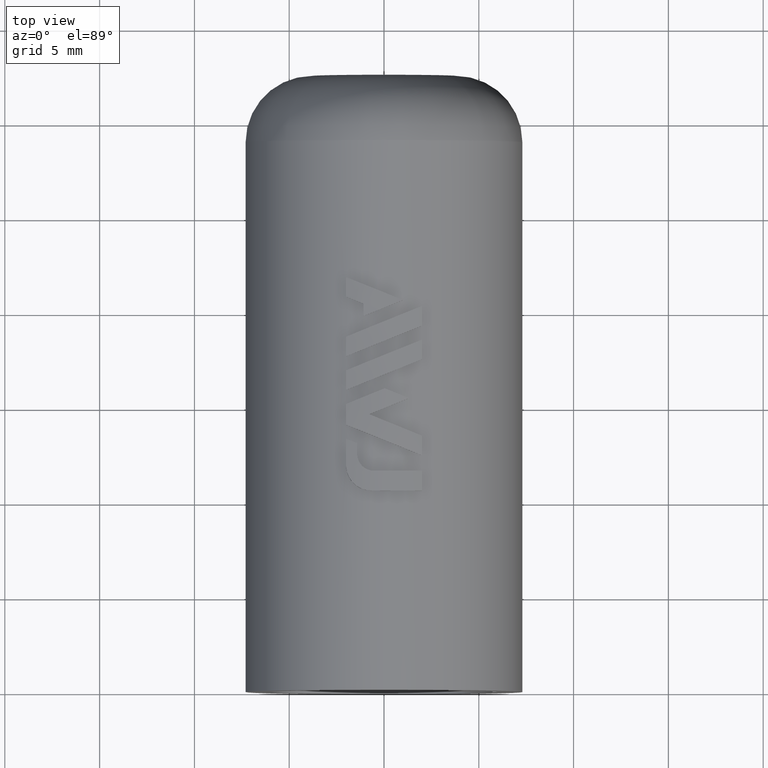
[diagram: clean part render]
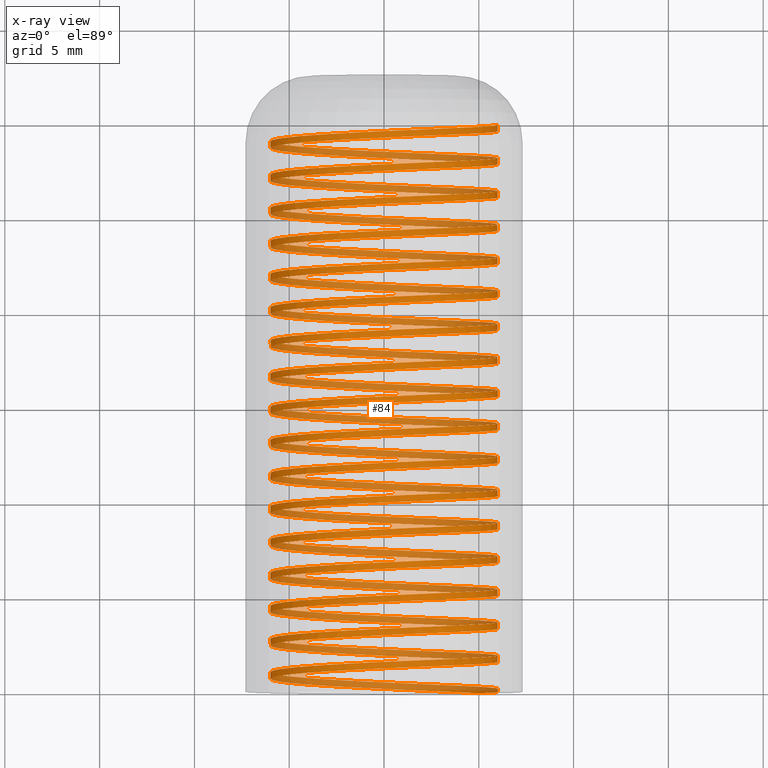
[diagram: x-ray — body ghosted, one internal face saturated and labeled with its STEP entity id]
A machine part, top view, then the same camera in x-ray: the body is ghosted and one INTERNAL B-rep face — a face not visible from any outside direction — is saturated and labeled: STEP entity #84.
In plain terms, the highlighted face is a freeform B-spline surface patch.
Its self-contained STEP definition (entity closure, byte-faithful):
#84=ADVANCED_FACE('',(#169),#170,.F.);
#169=FACE_OUTER_BOUND('',#341,.T.);
#170=B_SPLINE_SURFACE_WITH_KNOTS('',1,3,((#342,#343,#344,#345,#346,#347,#348,#349,#350,#351,#352,#353,#354,#355,#356,#357,#358,#359,#360,#361,#362,#363,#364,#365,#366,#367,#368,#369,#370,#371,#372,#373,#374,#375,#376,#377,#378,#379,#380,#381,#382,#383,#384,#385,#386,#387,#388,#389,#390,#391,#392,#393,#394,#395,#396,#397,#398,#399,#400,#401,#402,#403,#404,#405,#406,#407,#408,#409,#410,#411,#412,#413,#414,#415,#416,#417,#418,#419,#420,#421,#422,#423,#424,#425,#426,#427,#428,#429,#430,#431,#432,#433,#434,#435,#436,#437,#438,#439,#440,#441,#442,#443,#444,#445,#446,#447,#448,#449,#450,#451,#452,#453,#454,#455,#456,#457,#458,#459,#460,#461,#462,#463,#464,#465,#466,#467,#468,#469,#470,#471,#472,#473,#474,#475,#476,#477,#478,#479,#480,#481,#482,#483,#484,#485,#486,#487,#488,#489,#490,#491,#492,#493,#494,#495,#496,#497,#498,#499,#500,#501,#502,#503,#504,#505,#506,#507,#508,#509,#510,#511,#512,#513,#514,#515,#516,#517,#518,#519,#520,#521,#522,#523,#524,#525,#526,#527,#528,#529,#530,#531,#532,#533,#534,#535,#536,#537,#538,#539,#540,#541,#542,#543,#544,#545,#546,#547,#548,#549,#550,#551,#552,#553,#554,#555,#556,#557,#558,#559,#560,#561,#562,#563,#564,#565,#566,#567,#568,#569,#570,#571,#572,#573,#574,#575,#576,#577,#578,#579,#580,#581,#582,#583,#584,#585,#586,#587,#588,#589,#590,#591,#592,#593,#594,#595,#596,#597,#598,#599,#600,#601,#602,#603,#604,#605,#606,#607,#608,#609,#610,#611,#612,#613,#614),(#615,#616,#617,#618,#619,#620,#621,#622,#623,#624,#625,#626,#627,#628,#629,#630,#631,#632,#633,#634,#635,#636,#637,#638,#639,#640,#641,#642,#643,#644,#645,#646,#647,#648,#649,#650,#651,#652,#653,#654,#655,#656,#657,#658,#659,#660,#661,#662,#663,#664,#665,#666,#667,#668,#669,#670,#671,#672,#673,#674,#675,#676,#677,#678,#679,#680,#681,#682,#683,#684,#685,#686,#687,#688,#689,#690,#691,#692,#693,#694,#695,#696,#697,#698,#699,#700,#701,#702,#703,#704,#705,#706,#707,#708,#709,#710,#711,#712,#713,#714,#715,#716,#717,#718,#719,#720,#721,#722,#723,#724,#725,#726,#727,#728,#729,#730,#731,#732,#733,#734,#735,#736,#737,#738,#739,#740,#741,#742,#743,#744,#745,#746,#747,#748,#749,#750,#751,#752,#753,#754,#755,#756,#757,#758,#759,#760,#761,#762,#763,#764,#765,#766,#767,#768,#769,#770,#771,#772,#773,#774,#775,#776,#777,#778,#779,#780,#781,#782,#783,#784,#785,#786,#787,#788,#789,#790,#791,#792,#793,#794,#795,#796,#797,#798,#799,#800,#801,#802,#803,#804,#805,#806,#807,#808,#809,#810,#811,#812,#813,#814,#815,#816,#817,#818,#819,#820,#821,#822,#823,#824,#825,#826,#827,#828,#829,#830,#831,#832,#833,#834,#835,#836,#837,#838,#839,#840,#841,#842,#843,#844,#845,#846,#847,#848,#849,#850,#851,#852,#853,#854,#855,#856,#857,#858,#859,#860,#861,#862,#863,#864,#865,#866,#867,#868,#869,#870,#871,#872,#873,#874,#875,#876,#877,#878,#879,#880,#881,#882,#883,#884,#885,#886,#887)),.UNSPECIFIED.,.F.,.F.,.F.,(2,2),(4,1,1,1,1,1,1,1,1,1,1,1,1,1,1,1,1,1,1,1,1,1,1,1,1,1,1,1,1,1,1,1,1,1,1,1,1,1,1,1,1,1,1,1,1,1,1,1,1,1,1,1,1,1,1,1,1,1,1,1,1,1,1,1,1,1,1,1,1,1,1,1,1,1,1,1,1,1,1,1,1,1,1,1,1,1,1,1,1,1,1,1,1,1,1,1,1,1,1,1,1,1,1,1,1,1,1,1,1,1,1,1,1,1,1,1,1,1,1,1,1,1,1,1,1,1,1,1,1,1,1,1,1,1,1,1,1,1,1,1,1,1,1,1,1,1,1,1,1,1,1,1,1,1,1,1,1,1,1,1,1,1,1,1,1,1,1,1,1,1,1,1,1,1,1,1,1,1,1,1,1,1,1,1,1,1,1,1,1,1,1,1,1,1,1,1,1,1,1,1,1,1,1,1,1,1,1,1,1,1,1,1,1,1,1,1,1,1,1,1,1,1,1,1,1,1,1,1,1,1,1,1,1,1,1,1,1,1,1,1,1,1,1,1,1,1,1,1,1,1,1,1,1,1,1,1,1,1,1,1,1,1,1,1,1,1,1,1,1,1,4),(0.666666666666667,1.0),(0.0,1.0,2.0,3.0,4.0,5.0,6.0,7.0,8.0,9.0,10.0,11.0,12.0,13.0,14.0,15.0,16.0,17.0,18.0,19.0,20.0,21.0,22.0,23.0,24.0,25.0,26.0,27.0,28.0,29.0,30.0,31.0,32.0,33.0,34.0,35.0,36.0,37.0,38.0,39.0,40.0,41.0,42.0,43.0,44.0,45.0,46.0,47.0,48.0,49.0,50.0,51.0,52.0,53.0,54.0,55.0,56.0,57.0,58.0,59.0,60.0,61.0,62.0,63.0,64.0,65.0,66.0,67.0,68.0,69.0,70.0,71.0,72.0,73.0,74.0,75.0,76.0,77.0,78.0,79.0,80.0,81.0,82.0,83.0,84.0,85.0,86.0,87.0,88.0,89.0,90.0,91.0,92.0,93.0,94.0,95.0,96.0,97.0,98.0,99.0,100.0,101.0,102.0,103.0,104.0,105.0,106.0,107.0,108.0,109.0,110.0,111.0,112.0,113.0,114.0,115.0,116.0,117.0,118.0,119.0,120.0,121.0,122.0,123.0,124.0,125.0,126.0,127.0,128.0,129.0,130.0,131.0,132.0,133.0,134.0,135.0,136.0,137.0,138.0,139.0,140.0,141.0,142.0,143.0,144.0,145.0,146.0,147.0,148.0,149.0,150.0,151.0,152.0,153.0,154.0,155.0,156.0,157.0,158.0,159.0,160.0,161.0,162.0,163.0,164.0,165.0,166.0,167.0,168.0,169.0,170.0,171.0,172.0,173.0,174.0,175.0,176.0,177.0,178.0,179.0,180.0,181.0,182.0,183.0,184.0,185.0,186.0,187.0,188.0,189.0,190.0,191.0,192.0,193.0,194.0,195.0,196.0,197.0,198.0,199.0,200.0,201.0,202.0,203.0,204.0,205.0,206.0,207.0,208.0,209.0,210.0,211.0,212.0,213.0,214.0,215.0,216.0,217.0,218.0,219.0,220.0,221.0,222.0,223.0,224.0,225.0,226.0,227.0,228.0,229.0,230.0,231.0,232.0,233.0,234.0,235.0,236.0,237.0,238.0,239.0,240.0,241.0,242.0,243.0,244.0,245.0,246.0,247.0,248.0,249.0,250.0,251.0,252.0,253.0,254.0,255.0,256.0,257.0,258.0,259.0,260.0,261.0,262.0,263.0,264.0,265.0,266.0,267.0,268.0,269.0,270.0),.UNSPECIFIED.);
#341=EDGE_LOOP('',(#2153,#2154,#2155,#2156,#2157));
#342=CARTESIAN_POINT('',(6.0,-0.173205080756917,1.23497403709677E-15));
#343=CARTESIAN_POINT('',(6.0,-0.136732864291801,-0.785698528844707));
#344=CARTESIAN_POINT('',(5.68319828300515,-0.0629633707224755,-2.37449012845695));
#345=CARTESIAN_POINT('',(4.33093810043045,0.0470276465663354,-4.37760158037262));
#346=CARTESIAN_POINT('',(2.31029606030673,0.157196373989755,-5.70879451596919));
#347=CARTESIAN_POINT('',(-0.0668780675576619,0.267317484096926,-6.15799165613144));
#348=CARTESIAN_POINT('',(-2.43373489176489,0.377451353241373,-5.65711598058333));
#349=CARTESIAN_POINT('',(-4.42500212500184,0.487581803606615,-4.28313165106649));
#350=CARTESIAN_POINT('',(-5.73337861130582,0.59771317003299,-2.24816880666725));
#351=CARTESIAN_POINT('',(-6.15694730346783,0.707844291000912,0.133749149535583));
#352=CARTESIAN_POINT('',(-5.6303409845079,0.817975477739405,2.4950248816093));
#353=CARTESIAN_POINT('',(-4.23482844644183,0.92810664685468,4.47125454210909));
#354=CARTESIAN_POINT('',(-2.18577313166228,1.03823782069209,5.75745471450752));
#355=CARTESIAN_POINT('',(0.200603108981975,1.14836899326421,6.1551317959248));
#356=CARTESIAN_POINT('',(2.55602113829683,1.25850016617536,5.6029139701078));
#357=CARTESIAN_POINT('',(4.51697946695494,1.36863133899567,4.18602263669184));
#358=CARTESIAN_POINT('',(5.78085186711268,1.47876251184032,2.12312051225112));
#359=CARTESIAN_POINT('',(6.152590370983,1.58889368467845,-0.267433629178039));
#360=CARTESIAN_POINT('',(5.57482618111499,1.69902485751832,-2.61671589392006));
#361=CARTESIAN_POINT('',(4.13672314908123,1.80915603035773,-4.56217169854257));
#362=CARTESIAN_POINT('',(2.06021750343829,1.91928720319726,-5.80356725279021));
#363=CARTESIAN_POINT('',(-0.334232609697145,2.02941837603677,-6.14932334340501));
#364=CARTESIAN_POINT('',(-2.67710204800992,2.13954954887627,-5.54608092653472));
#365=CARTESIAN_POINT('',(-4.60682589190996,2.24968072171578,-4.08693579846308));
#366=CARTESIAN_POINT('',(-5.82559819666942,2.35981189455529,-1.99707152352968));
#367=CARTESIAN_POINT('',(-6.14533109739798,2.46994306739479,0.400992172597525));
#368=CARTESIAN_POINT('',(-5.51668159672168,2.58007424023429,2.7371724789504));
#369=CARTESIAN_POINT('',(-4.03666645641367,2.69020541307381,4.65093678077824));
#370=CARTESIAN_POINT('',(-1.93369001964677,2.80033658591331,5.8469421005385));
#371=CARTESIAN_POINT('',(0.467704444617724,2.91046775875282,6.14061410378603));
#372=CARTESIAN_POINT('',(2.79692010235346,3.02059893159232,5.48663165887617));
#373=CARTESIAN_POINT('',(4.69449916294462,3.13073010443183,3.98592105143132));
#374=CARTESIAN_POINT('',(5.86759644721106,3.24086127727133,1.87008046666641));
#375=CARTESIAN_POINT('',(6.1351729188663,3.35099245011084,-0.534361558067826));
#376=CARTESIAN_POINT('',(5.45593465692774,3.46112362295034,-2.85633787190273));
#377=CARTESIAN_POINT('',(3.93470556815872,3.57125479578986,-4.73750790089387));
#378=CARTESIAN_POINT('',(1.80625036636034,3.68138596862936,-5.8875588008235));
#379=CARTESIAN_POINT('',(-0.600955651763075,3.79151714146887,-6.12900818434313));
#380=CARTESIAN_POINT('',(-2.91541878018308,3.90164831430837,-5.42459421111726));
#381=CARTESIAN_POINT('',(-4.77995792240459,4.01177948714787,-3.8830260466771));
#382=CARTESIAN_POINT('',(-5.90682680712221,4.12191065998739,-1.74220724651046));
#383=CARTESIAN_POINT('',(-6.12212062725247,4.23204183282689,0.667478871950884));
#384=CARTESIAN_POINT('',(-5.39261401756989,4.3421730056664,2.97415585950699));
#385=CARTESIAN_POINT('',(-3.8308885817938,4.4523041785059,4.82184422114745));
#386=CARTESIAN_POINT('',(-1.67795866002109,4.56243535134541,5.92539819374118));
#387=CARTESIAN_POINT('',(0.7339233732371,4.67256652418492,6.11451105987612));
#388=CARTESIAN_POINT('',(3.03254218273634,4.78269769702442,5.35999784785926));
#389=CARTESIAN_POINT('',(4.86316185727554,4.89282886986393,3.77829932232366));
#390=CARTESIAN_POINT('',(5.94327077047004,5.00296004270343,1.61351218402823));
#391=CARTESIAN_POINT('',(6.10618037964588,5.11309121554294,-0.800281319511331));
#392=CARTESIAN_POINT('',(5.32674954856263,5.22322238838244,-3.09057086409921));
#393=CARTESIAN_POINT('',(3.72526447036373,5.33335356122195,-4.90390595800702));
#394=CARTESIAN_POINT('',(1.54887541900576,5.44348473406146,-5.96044242951233));
#395=CARTESIAN_POINT('',(-0.866544884870934,5.55361590690096,-6.0971295690378));
#396=CARTESIAN_POINT('',(-3.14823506000213,5.66374707974047,-5.29287304080728));
#397=CARTESIAN_POINT('',(-4.94407171819979,5.77387825257998,-3.67179028056179));
#398=CARTESIAN_POINT('',(-5.97691114573405,5.88400942541948,-1.48405598786944));
#399=CARTESIAN_POINT('',(-6.08735969545626,5.99414059825899,0.932706254544155));
#400=CARTESIAN_POINT('',(-5.258372319808,6.1042717710985,3.20552796983712));
#401=CARTESIAN_POINT('',(-3.61788305937895,6.214402943938,4.98365440091806));
#402=CARTESIAN_POINT('',(-1.41906153507752,6.32453411677751,5.99267497690259));
#403=CARTESIAN_POINT('',(0.998757625811496,6.43466528961702,6.07687191110809));
#404=CARTESIAN_POINT('',(3.2624428367837,6.54479646245652,5.22325145439599));
#405=CARTESIAN_POINT('',(5.02264933799114,6.65492763529603,3.5635491643456));
#406=CARTESIAN_POINT('',(6.0077320639157,6.76505880813553,1.35389972572944));
#407=CARTESIAN_POINT('',(6.06566745286669,6.87518998097504,-1.06469120892622));
#408=CARTESIAN_POINT('',(5.18751458653901,6.98532115381455,-3.31897294860565));
#409=CARTESIAN_POINT('',(3.50879500331176,7.09545232665405,-5.06105193056399));
#410=CARTESIAN_POINT('',(1.28857824466187,7.20558349949356,-6.02208063102075));
#411=CARTESIAN_POINT('',(-1.13049922803291,7.31571467233306,-6.05374764212617));
#412=CARTESIAN_POINT('',(-3.37511163844285,7.42584584517257,-5.15116593085282));
#413=CARTESIAN_POINT('',(-5.09885764963941,7.53597701801208,-3.4536270336915));
#414=CARTESIAN_POINT('',(-6.03571898602419,7.64610819085158,-1.22310479554216));
#415=CARTESIAN_POINT('',(-6.04111388464549,7.75623936369109,1.19617392208434));
#416=CARTESIAN_POINT('',(-5.11420977410415,7.8663705365306,3.43085228559736));
#417=CARTESIAN_POINT('',(-3.3980517617012,7.97650170937011,5.13606203661234));
#418=CARTESIAN_POINT('',(-1.15748709996001,8.08663288220961,6.04864552049111));
#419=CARTESIAN_POINT('',(1.26170754575709,8.19676405504912,6.02776767038268));
#420=CARTESIAN_POINT('',(3.48618831631421,8.30689522788862,5.07665047470529));
#421=CARTESIAN_POINT('',(5.17266070379566,8.41702640072813,3.34207574159222));
#422=CARTESIAN_POINT('',(6.06085870993491,8.52715757356763,1.0917328965169));
#423=CARTESIAN_POINT('',(6.01371057331916,8.63728874640714,-1.32709237036481));
#424=CARTESIAN_POINT('',(5.03849246219981,8.74741991924665,-3.54111320455682));
#425=CARTESIAN_POINT('',(3.28570557487826,8.85755109208615,-5.20864933493752));
#426=CARTESIAN_POINT('',(1.02584993991309,8.96768226492565,-6.07235711399713));
#427=CARTESIAN_POINT('',(-1.39232068476959,9.07781343776516,-5.99894425127403));
#428=CARTESIAN_POINT('',(-3.59562047277653,9.18794461060467,-4.99974023674045));
#429=CARTESIAN_POINT('',(-5.24402368573061,9.29807578344418,-3.22894790955622));
#430=CARTESIAN_POINT('',(-6.08313937661719,9.40820695628368,-0.959846000033563));
#431=CARTESIAN_POINT('',(-5.98347044570867,9.51833812912319,1.45738479629164));
#432=CARTESIAN_POINT('',(-4.96039836855809,9.62846930196269,3.64970369267663));
#433=CARTESIAN_POINT('',(-3.17180943932291,9.73860047480221,5.27877958431237));
#434=CARTESIAN_POINT('',(-0.893728861031212,9.84873164764171,6.09320422619256));
#435=CARTESIAN_POINT('',(1.52227703161637,9.95886282048121,5.96729098152121));
#436=CARTESIAN_POINT('',(3.70335648597016,10.0689939933207,4.92047149742316));
#437=CARTESIAN_POINT('',(5.31291293175738,10.1791251661602,3.11429690278502));
#438=CARTESIAN_POINT('',(6.1025504757285,10.2892563389997,0.827506320409116));
#439=CARTESIAN_POINT('',(5.95040776683146,10.3993875118392,-1.58698973769926));
#440=CARTESIAN_POINT('',(4.87996433209804,10.5095186846787,-3.75657252513273));
#441=CARTESIAN_POINT('',(3.0564170826645,10.6196498575182,-5.34641970256056));
#442=CARTESIAN_POINT('',(0.761186188100906,10.7297810303578,-6.1111770229781));
#443=CARTESIAN_POINT('',(-1.65151528266861,10.8399122031973,-5.93282279275583));
#444=CARTESIAN_POINT('',(-3.80934553414818,10.9500433760368,-4.83888164978195));
#445=CARTESIAN_POINT('',(-5.37929594511182,11.0601745488763,-2.99817680499911));
#446=CARTESIAN_POINT('',(-6.11908285057238,11.1703057217158,-0.694776285549549));
#447=CARTESIAN_POINT('',(-5.91453813317245,11.2804368945553,1.71584605672541));
#448=CARTESIAN_POINT('',(-4.79722829554749,11.3905680673948,3.86166928924909));
#449=CARTESIAN_POINT('',(-2.93958293833682,11.5006992402343,5.4115377821623));
#450=CARTESIAN_POINT('',(-0.628284444785133,11.6108304130738,6.12626702614016));
#451=CARTESIAN_POINT('',(1.77997447304108,11.7209615859133,5.89555594447659));
#452=CARTESIAN_POINT('',(3.91353761965046,11.8310927587528,4.75500918176944));
#453=CARTESIAN_POINT('',(5.44314141128159,11.9412239315923,2.88064239292602));
#454=CARTESIAN_POINT('',(6.13272870241803,12.0513551044318,0.561718507501031));
#455=CARTESIAN_POINT('',(5.87587846532651,12.1614862772713,-1.84389296865173));
#456=CARTESIAN_POINT('',(4.71222928754505,12.2716174501108,-3.96494440827784));
#457=CARTESIAN_POINT('',(2.82136211990063,12.3817486229503,-5.47410310530602));
#458=CARTESIAN_POINT('',(0.495086324129142,12.4918797957899,-6.13846711735035));
#459=CARTESIAN_POINT('',(-1.90759400535064,12.6020109686294,-5.85550801637923));
#460=CARTESIAN_POINT('',(-4.01588359248851,12.7121421414689,-4.6688936581071));
#461=CARTESIAN_POINT('',(-5.50441921277839,12.8222733143084,-2.76174911046011));
#462=CARTESIAN_POINT('',(-6.143481594179,12.9324044871479,-0.428395752914273));
#463=CARTESIAN_POINT('',(-5.83444700001694,13.0425356599874,1.97107007057698));
#464=CARTESIAN_POINT('',(-4.62500740422883,13.1526668328269,4.06634916478646));
#465=CARTESIAN_POINT('',(-2.70181039504514,13.2627980056664,5.53408615837856));
#466=CARTESIAN_POINT('',(-0.361654658986981,13.3729291785059,6.14777154152332));
#467=CARTESIAN_POINT('',(2.03431367830184,13.4830603513454,5.81269790006371));
#468=CARTESIAN_POINT('',(4.11633517353105,13.5931915241849,4.58057570162116));
#469=CARTESIAN_POINT('',(5.56310044334497,13.7033226970244,2.64155304250854));
#470=CARTESIAN_POINT('',(6.15133645344979,13.8134538698639,0.294870913436225));
#471=CARTESIAN_POINT('',(5.79026328149251,13.9235850427034,-2.09731736991108));
#472=CARTESIAN_POINT('',(4.5356037903223,14.0337162155429,-4.16583572363879));
#473=CARTESIAN_POINT('',(2.58098415928137,14.1438473883824,-5.59145864588747));
#474=CARTESIAN_POINT('',(0.228052392381149,14.253978561222,-6.15417590953171));
#475=CARTESIAN_POINT('',(-2.16007371508514,14.3641097340615,-5.76714579012265));
#476=CARTESIAN_POINT('',(-4.21484497727842,14.474240906901,-4.49009697407996));
#477=CARTESIAN_POINT('',(-5.61915742159078,14.5843720797405,-2.52011088853493));
#478=CARTESIAN_POINT('',(-6.15628957489871,14.69450325258,-0.161206976042057));
#479=CARTESIAN_POINT('',(-5.74334815230796,14.8046344254195,2.22257531267489));
#480=CARTESIAN_POINT('',(-4.44406061972547,14.914765598259,4.2633571545598));
#481=CARTESIAN_POINT('',(-2.45894040933847,15.0248967710985,5.64619350380887));
#482=CARTESIAN_POINT('',(-0.094342547811103,15.135027943938,6.15767720027638));
#483=CARTESIAN_POINT('',(2.284814791575,15.2451591167775,5.718873174615));
#484=CARTESIAN_POINT('',(4.31136653421523,15.355290289617,4.39750015654121));
#485=CARTESIAN_POINT('',(5.67256370405027,15.4654214624566,2.39747993581231));
#486=CARTESIAN_POINT('',(6.1583386220156,15.575552635296,0.027466993322829));
#487=CARTESIAN_POINT('',(5.69372374349224,15.6856838081356,-2.34678481159302));
#488=CARTESIAN_POINT('',(4.35042107562013,15.795814980975,-4.35886745427426));
#489=CARTESIAN_POINT('',(2.33573671627718,15.9059461538145,-5.6982649123541));
#490=CARTESIAN_POINT('',(-0.0394118004762635,16.016077326654,-6.15827376211177));
#491=CARTESIAN_POINT('',(-2.40847806431494,16.1262084994935,-5.6679028249296));
#492=CARTESIAN_POINT('',(-4.40585431273155,16.236339672333,-4.30282892921807));
#493=CARTESIAN_POINT('',(-5.72329409765672,16.3464708451726,-2.27371803239954));
#494=CARTESIAN_POINT('',(-6.15748262821416,16.4566020180121,0.106285946257626));
#495=CARTESIAN_POINT('',(-5.64141346410859,16.5667331908516,2.46988727396727));
#496=CARTESIAN_POINT('',(-4.25472933009932,16.6768643636911,4.45232156820728));
#497=CARTESIAN_POINT('',(-2.21143119833239,16.7869955365306,5.74764830814944));
#498=CARTESIAN_POINT('',(0.173147557240804,16.8971267093701,6.15596531362488));
#499=CARTESIAN_POINT('',(2.53100519827512,17.0072578822096,5.61425878504326));
#500=CARTESIAN_POINT('',(4.49826374060096,17.1173890550491,4.20612795087427));
#501=CARTESIAN_POINT('',(5.77132467162645,17.2275202278887,2.1488835598531));
#502=CARTESIAN_POINT('',(6.15372199728791,17.3376514007282,-0.239988748123699));
#503=CARTESIAN_POINT('',(5.58644199021184,17.4477825735677,-2.59182462931602));
#504=CARTESIAN_POINT('',(4.15703052333058,17.5579137464071,-4.54367541173761));
#505=CARTESIAN_POINT('',(2.08608249349687,17.6680449192466,-5.79432039582357));
#506=CARTESIAN_POINT('',(-0.30680163601241,17.7781760920862,-6.15075294376803));
#507=CARTESIAN_POINT('',(-2.6523383943703,17.8883072649257,-5.55796636017891));
#508=CARTESIAN_POINT('',(-4.58855122600676,17.9984384377651,-4.10744283775723));
#509=CARTESIAN_POINT('',(-5.81663276874763,18.1085696106047,-2.02303540568678));
#510=CARTESIAN_POINT('',(-6.14705850321962,18.2187007834442,0.373578341350946));
#511=CARTESIAN_POINT('',(-5.5288352532084,18.3288319562837,2.71253935676721));
#512=CARTESIAN_POINT('',(-4.05737074226175,18.4389631291232,4.6328858909938));
#513=CARTESIAN_POINT('',(-1.95974973186054,18.5490943019627,5.83825915899624));
#514=CARTESIAN_POINT('',(0.440310988850371,18.6592254748022,6.14263911134528));
#515=CARTESIAN_POINT('',(2.77242041672587,18.7693566476417,5.49905210486796));
#516=CARTESIAN_POINT('',(4.67667417810478,18.8794878204812,4.00682014208012));
#517=CARTESIAN_POINT('',(5.85919701606823,18.9896189933207,1.89623293559317));
#518=CARTESIAN_POINT('',(6.13749528934454,19.0997501661603,-0.506991708418066));
#519=CARTESIAN_POINT('',(5.46862042762343,19.2098813389998,-2.83197451219299));
#520=CARTESIAN_POINT('',(3.95579699888096,19.3200125118393,-4.7199109231823));
#521=CARTESIAN_POINT('',(1.83249250771723,19.4301436846788,-5.87944387066425));
#522=CARTESIAN_POINT('',(-0.573612636085082,19.5402748575183,-6.13162764385237));
#523=CARTESIAN_POINT('',(-2.89119461967612,19.6504060303578,-5.43754381042461));
#524=CARTESIAN_POINT('',(-4.76259102711516,19.7605372031973,-3.90430733006168));
#525=CARTESIAN_POINT('',(-5.8989973349781,19.8706683760368,-1.76853596543928));
#526=CARTESIAN_POINT('',(-6.12503686686764,19.9807995488763,0.640165914934034));
#527=CARTESIAN_POINT('',(-5.40582591828221,20.0909307217158,2.9500737550711));
#528=CARTESIAN_POINT('',(-3.8523572080398,20.2010618945553,4.80470945643904));
#529=CARTESIAN_POINT('',(-1.70437085145318,20.3111930673948,5.91785510297842));
#530=CARTESIAN_POINT('',(0.706643696025991,20.4213242402343,6.11772373567143));
#531=CARTESIAN_POINT('',(3.00860497448644,20.5314554130738,5.37347049183548));
#532=CARTESIAN_POINT('',(4.84626124393114,20.6415865859133,3.79995275953556));
#533=CARTESIAN_POINT('',(5.93601495068055,20.7517177587528,1.6400047330505));
#534=CARTESIAN_POINT('',(6.10968911273549,20.8618489315923,-0.773038139325862));
#535=CARTESIAN_POINT('',(5.34048134691087,20.9719801044318,-3.06678137506213));
#536=CARTESIAN_POINT('',(3.74710016485067,21.0821112772713,-4.88724148919484));
#537=CARTESIAN_POINT('',(1.57544520122798,21.1922424501108,-5.95347473640887));
#538=CARTESIAN_POINT('',(-0.839341414626401,21.3023736229503,-6.10093394562046));
#539=CARTESIAN_POINT('',(-3.12459609578361,21.4125047957899,-5.30686237407235));
#540=CARTESIAN_POINT('',(-4.9276453592384,21.5226359686293,-3.69380565713834));
#541=CARTESIAN_POINT('',(-5.97023240104923,21.6327671414688,-1.51069986979321));
#542=CARTESIAN_POINT('',(-6.09145926686401,21.7428983143083,0.905545702473064));
#543=CARTESIAN_POINT('',(-5.27261753816259,21.8530294871479,3.18204231829045));
#544=CARTESIAN_POINT('',(-3.64007552166873,21.9631606599873,4.96746808904487));
#545=CARTESIAN_POINT('',(-1.44577637446539,22.0732918328268,5.98628596829191));
#546=CARTESIAN_POINT('',(0.971643195084548,22.1834230056663,6.08126619385937));
#547=CARTESIAN_POINT('',(3.23911326768152,22.2935541785059,5.23775087783491));
#548=CARTESIAN_POINT('',(5.00670498213346,22.4036853513454,3.58591609508801));
#549=CARTESIAN_POINT('',(6.00163354486486,22.5138165241848,1.38068237197545));
#550=CARTESIAN_POINT('',(6.07035592872323,22.6239476970244,-1.03762609727482));
#551=CARTESIAN_POINT('',(5.20226650507746,22.7340788698639,-3.29580221331321));
#552=CARTESIAN_POINT('',(3.53133376467019,22.8442100427034,-5.04535141111412));
#553=CARTESIAN_POINT('',(1.31542553916357,22.9543412155429,-6.01627332075659));
#554=CARTESIAN_POINT('',(-1.10348662737228,23.0644723883824,-6.05872975815406));
#555=CARTESIAN_POINT('',(-3.35210246959298,23.1746035612219,-5.16616860472824));
#556=CARTESIAN_POINT('',(-5.0834028182331,23.2847347340614,-3.47633496756437));
#557=CARTESIAN_POINT('',(-6.03020356942989,23.3948659069009,-1.2500135720727));
#558=CARTESIAN_POINT('',(-6.04638905328057,23.5049970797404,1.16921701813654));
#559=CARTESIAN_POINT('',(-5.12946143398102,23.6151282525799,3.40800739676901));
#560=CARTESIAN_POINT('',(-3.42092619003594,23.7252594254194,5.12085471590995));
#561=CARTESIAN_POINT('',(-1.18445418504153,23.8353905982589,6.04342264802559));
#562=CARTESIAN_POINT('',(1.23480951767573,23.9455217710984,6.03333526949964));
#563=CARTESIAN_POINT('',(3.46351040171177,24.0556529439379,5.09214932188417));
#564=CARTESIAN_POINT('',(5.15770268726758,24.1657841167775,3.36511396670063));
#565=CARTESIAN_POINT('',(6.05592899755589,24.275915289617,1.11875510979519));
#566=CARTESIAN_POINT('',(6.01956994630501,24.3860464624564,-1.30025639036014));
#567=CARTESIAN_POINT('',(5.05423666882933,24.496177635296,-3.51860493869262));
#568=CARTESIAN_POINT('',(3.30890487975464,24.6063088081355,-5.19394238665265));
#569=CARTESIAN_POINT('',(1.05292409453238,24.716439980975,-6.06772114308858));
#570=CARTESIAN_POINT('',(-1.36554991773398,24.8265711538144,-6.00509470710562));
#571=CARTESIAN_POINT('',(-3.5732845101557,24.9367023266539,-5.01572794603259));
#572=CARTESIAN_POINT('',(-5.22956954014787,25.0468334994935,-3.25230555819847));
#573=CARTESIAN_POINT('',(-6.07879769392091,25.156964672333,-0.986968903012073));
#574=CARTESIAN_POINT('',(-5.98991125903394,25.2670958451724,1.43068239942669));
#575=CARTESIAN_POINT('',(-4.97662769500781,25.377227018012,3.62754266748339));
#576=CARTESIAN_POINT('',(-3.19532267705413,25.4873581908515,5.26457994607685));
#577=CARTESIAN_POINT('',(-0.920897313638522,25.597489363691,6.08915734374341));
#578=CARTESIAN_POINT('',(1.49564615406065,25.7076205365305,5.97402139274497));
#579=CARTESIAN_POINT('',(3.68137301175783,25.81775170937,4.93694052703008));
#580=CARTESIAN_POINT('',(5.2989694754987,25.9278828822095,3.13796295657933));
#581=CARTESIAN_POINT('',(6.09879887079424,26.038014055049,0.854717118542621));
#582=CARTESIAN_POINT('',(5.95742698220494,26.1481452278885,-1.56043352015641));
#583=CARTESIAN_POINT('',(4.89667112259247,26.258276400728,-3.73476919451524));
#584=CARTESIAN_POINT('',(3.08023316147381,26.3684075735675,-5.33273407269556));
#585=CARTESIAN_POINT('',(0.788436122663898,26.478538746407,-6.1077211380031));
#586=CARTESIAN_POINT('',(-1.6250368570374,26.5886699192465,-5.94012998447012));
#587=CARTESIAN_POINT('',(-3.78772491849403,26.6988010920861,-4.85582423085419));
#588=CARTESIAN_POINT('',(-5.36586975565089,26.8089322649255,-3.02214010008172));
#589=CARTESIAN_POINT('',(-6.11592309312523,26.9190634377651,-0.722062142830189));
#590=CARTESIAN_POINT('',(-5.92213243945626,27.0291946106045,1.68944854573049));
#591=CARTESIAN_POINT('',(-4.81440466907982,27.1393257834441,3.84023393837839));
#592=CARTESIAN_POINT('',(-2.96369062358955,27.2494569562836,5.39837261651867));
#593=CARTESIAN_POINT('',(-0.65560300683455,27.3595881291231,6.1234037688658));
#594=CARTESIAN_POINT('',(1.75366098986393,27.4697193019626,5.90343646969813));
#595=CARTESIAN_POINT('',(3.89229006153455,27.5798504748021,4.77241732207127));
#596=CARTESIAN_POINT('',(5.43023882208458,27.6899816476415,2.90489162521871));
#597=CARTESIAN_POINT('',(6.13016228299422,27.8001128204813,0.589066552507122));
#598=CARTESIAN_POINT('',(5.88404428009703,27.9102439933194,-1.81766661653978));
#599=CARTESIAN_POINT('',(4.72986714159898,28.0203751661642,-3.9438871488327));
#600=CARTESIAN_POINT('',(2.8457500393869,28.1305063389844,-5.46146461387312));
#601=CARTESIAN_POINT('',(0.52246062688136,28.2406375118956,-6.13619783973865));
#602=CARTESIAN_POINT('',(-1.88145787752604,28.3507686844677,-5.86395815284066));
#603=CARTESIAN_POINT('',(-3.99501911446861,28.4608998583051,-4.6867591637426));
#604=CARTESIAN_POINT('',(-5.49204631114845,28.5710310274205,-2.78627277465376));
#605=CARTESIAN_POINT('',(-6.14150972244253,28.6811622141586,-0.455793328563462));
#606=CARTESIAN_POINT('',(-5.843180473128,28.7912933351277,1.94502814091792));
#607=CARTESIAN_POINT('',(-4.64309839338776,28.9014247015509,4.04567666203856));
#608=CARTESIAN_POINT('',(-2.72646727268438,29.0115551519241,5.52199233448617));
#609=CARTESIAN_POINT('',(-0.38907036478889,29.1216890210501,6.14605272107699));
#610=CARTESIAN_POINT('',(2.00836014118689,29.2318101311969,5.82187989943797));
#611=CARTESIAN_POINT('',(4.09589416160967,29.3419788585611,4.59826854579797));
#612=CARTESIAN_POINT('',(5.55114276345689,29.451969875942,2.66866437922857));
#613=CARTESIAN_POINT('',(5.95065705974588,29.5257393694444,1.09863491697843));
#614=CARTESIAN_POINT('',(5.99177720852723,29.5622115859096,0.314015737461687));
#615=CARTESIAN_POINT('',(6.0,0.173205080756917,-1.23497403709677E-15));
#616=CARTESIAN_POINT('',(6.0,0.209677297222033,-0.78569594850768));
#617=CARTESIAN_POINT('',(5.68320221740738,0.283446790724479,-2.37448270267483));
#618=CARTESIAN_POINT('',(4.33093566242125,0.393437808105375,-4.37760424094624));
#619=CARTESIAN_POINT('',(2.3103014050854,0.50360653546954,-5.70879176690206));
#620=CARTESIAN_POINT('',(-0.0668776110948953,0.613727645616395,-6.15799213901325));
#621=CARTESIAN_POINT('',(-2.43373199484923,0.723861514742332,-5.65711690778885));
#622=CARTESIAN_POINT('',(-4.42500083164836,0.833991965115601,-4.28313319712975));
#623=CARTESIAN_POINT('',(-5.73337768969106,0.944123331538879,-2.24817098501424));
#624=CARTESIAN_POINT('',(-6.15694737651309,1.05425445250791,0.133746895544532));
#625=CARTESIAN_POINT('',(-5.63034190256942,1.16438563924603,2.49502278922396));
#626=CARTESIAN_POINT('',(-4.23483010213496,1.27451680836143,4.47125297762791));
#627=CARTESIAN_POINT('',(-2.18577526219499,1.3846479821988,5.75745390483916));
#628=CARTESIAN_POINT('',(0.200600831107917,1.49477915477093,6.15513187036747));
#629=CARTESIAN_POINT('',(2.55601906480359,1.60491032768208,5.60291491597182));
#630=CARTESIAN_POINT('',(4.51697791781517,1.71504150050239,4.18602430832351));
#631=CARTESIAN_POINT('',(5.78085108139995,1.82517267334704,2.12312265159198));
#632=CARTESIAN_POINT('',(6.15259046995289,1.93530384618517,-0.26743135226145));
#633=CARTESIAN_POINT('',(5.57482714949392,2.04543501902504,-2.61671383082024));
#634=CARTESIAN_POINT('',(4.13672483742346,2.15556619186445,-4.56217016764726));
#635=CARTESIAN_POINT('',(2.06021965118924,2.26569736470398,-5.80356649035628));
#636=CARTESIAN_POINT('',(-0.334230333990584,2.37582853754348,-6.14932346709548));
#637=CARTESIAN_POINT('',(-2.67709999554771,2.48595971038299,-5.54608191726102));
#638=CARTESIAN_POINT('',(-4.60682437943974,2.5960908832225,-4.08693750333067));
#639=CARTESIAN_POINT('',(-5.82559745760417,2.706222056062,-1.99707367943373));
#640=CARTESIAN_POINT('',(-6.14533124579445,2.81635322890151,0.400989898368385));
#641=CARTESIAN_POINT('',(-5.51668260967849,2.92648440174101,2.73717043736813));
#642=CARTESIAN_POINT('',(-4.03666817760556,3.03661557458052,4.6509352869114));
#643=CARTESIAN_POINT('',(-1.93369218344964,3.14674674742003,5.84694138492912));
#644=CARTESIAN_POINT('',(0.467702172134218,3.25687792025954,6.140614276871));
#645=CARTESIAN_POINT('',(2.79691807189189,3.36700909309904,5.48663269394404));
#646=CARTESIAN_POINT('',(4.69449768785735,3.47714026593854,3.98592278874454));
#647=CARTESIAN_POINT('',(5.86759575514193,3.58727143877806,1.87008263811294));
#648=CARTESIAN_POINT('',(6.13517311661936,3.69740261161756,-0.534359287597959));
#649=CARTESIAN_POINT('',(5.45593571398462,3.80753378445706,-2.85633585280133));
#650=CARTESIAN_POINT('',(3.93470732138838,3.91766495729657,-4.73750644476013));
#651=CARTESIAN_POINT('',(1.80625254519442,4.02779613013607,-5.88755813237626));
#652=CARTESIAN_POINT('',(-0.600953383574612,4.13792730297559,-6.12900840674096));
#653=CARTESIAN_POINT('',(-2.91541677267997,4.24805847581509,-5.42459529003846));
#654=CARTESIAN_POINT('',(-4.77995648539611,4.3581896486546,-3.88302781561642));
#655=CARTESIAN_POINT('',(-5.90682616237568,4.46832082149411,-1.74220943247514));
#656=CARTESIAN_POINT('',(-6.12212087426883,4.57845199433361,0.667476606311324));
#657=CARTESIAN_POINT('',(-5.39261511822818,4.68858316717311,2.97415386383892));
#658=CARTESIAN_POINT('',(-3.83089036623417,4.79871434001262,4.8218428034337));
#659=CARTESIAN_POINT('',(-1.67796085285857,4.90884551285213,5.9253975727714));
#660=CARTESIAN_POINT('',(0.733921110413642,5.01897668569164,6.11451133148188));
#661=CARTESIAN_POINT('',(3.03254019913867,5.12910785853114,5.35999897012482));
#662=CARTESIAN_POINT('',(4.86316045902372,5.23923903137064,3.77830112205462));
#663=CARTESIAN_POINT('',(5.94327017335024,5.34937020421015,1.6135143834799));
#664=CARTESIAN_POINT('',(6.10618067580902,5.45950137704966,-0.800279059770839));
#665=CARTESIAN_POINT('',(5.32675069230312,5.56963254988916,-3.09056889280587));
#666=CARTESIAN_POINT('',(3.72526628517305,5.67976372272867,-4.90390457938204));
#667=CARTESIAN_POINT('',(1.54887762481222,5.78989489556818,-5.96044185631293));
#668=CARTESIAN_POINT('',(-0.866542628479909,5.90002606840768,-6.09712988972338));
#669=CARTESIAN_POINT('',(-3.14823310124563,6.01015724124719,-5.29287420588781));
#670=CARTESIAN_POINT('',(-4.94407035936423,6.12028841408669,-3.67179211023543));
#671=CARTESIAN_POINT('',(-5.97691059652266,6.2304195869262,-1.48405819977055));
#672=CARTESIAN_POINT('',(-6.08736004062646,6.34055075976571,0.932704001768705));
#673=CARTESIAN_POINT('',(-5.25837350609117,6.45068193260522,3.20552602384844));
#674=CARTESIAN_POINT('',(-3.61788490370112,6.56081310544472,4.98365306203217));
#675=CARTESIAN_POINT('',(-1.41906375281242,6.67094427828422,5.99267445174398));
#676=CARTESIAN_POINT('',(0.998755376917301,6.78107545112374,6.07687228072221));
#677=CARTESIAN_POINT('',(3.26244090379234,6.89120662396324,5.22325266174188));
#678=CARTESIAN_POINT('',(5.02264801921283,7.00133779680275,3.5635510230988));
#679=CARTESIAN_POINT('',(6.0077315628718,7.11146896964225,1.35390194903659));
#680=CARTESIAN_POINT('',(6.06566784688113,7.22160014248176,-1.06468896417851));
#681=CARTESIAN_POINT('',(5.18751581480525,7.33173131532126,-3.31897102883959));
#682=CARTESIAN_POINT('',(3.50879687627678,7.44186248816077,-5.06105063204879));
#683=CARTESIAN_POINT('',(1.28858047327906,7.55199366100028,-6.02208015415064));
#684=CARTESIAN_POINT('',(-1.1304969876964,7.66212483383978,-6.05374806049446));
#685=CARTESIAN_POINT('',(-3.37510973212848,7.77225600667929,-5.15116717989455));
#686=CARTESIAN_POINT('',(-5.09885637154045,7.88238717951879,-3.45362892064745));
#687=CARTESIAN_POINT('',(-6.03571853338412,7.9925183523583,-1.22310702920656));
#688=CARTESIAN_POINT('',(-6.04111432731831,8.10264952519781,1.19617168642326));
#689=CARTESIAN_POINT('',(-5.11421104377406,8.21278069803732,3.43085039295951));
#690=CARTESIAN_POINT('',(-3.39805366242553,8.32291187087682,5.13606077908036));
#691=CARTESIAN_POINT('',(-1.1574893384082,8.43304304371633,6.04864509213447));
#692=CARTESIAN_POINT('',(1.26170531503509,8.54317421655583,6.02776813730781));
#693=CARTESIAN_POINT('',(3.4861864375761,8.65330538939534,5.07665176485364));
#694=CARTESIAN_POINT('',(5.17265946697896,8.76343656223484,3.34207765586078));
#695=CARTESIAN_POINT('',(6.06085830591221,8.87356773507435,1.09173513948488));
#696=CARTESIAN_POINT('',(6.01371106444153,8.98369890791386,-1.32709014484498));
#697=CARTESIAN_POINT('',(5.03849377267446,9.09383008075336,-3.54111133994));
#698=CARTESIAN_POINT('',(3.28570750246529,9.20396125359287,-5.20864811898197));
#699=CARTESIAN_POINT('',(1.02585218713634,9.31409242643237,-6.07235673435601));
#700=CARTESIAN_POINT('',(-1.39231846471439,9.42422359927188,-5.99894476653573));
#701=CARTESIAN_POINT('',(-3.59561862250091,9.53435477211138,-4.99974156738684));
#702=CARTESIAN_POINT('',(-5.24402249077961,9.6444859449509,-3.22894985023441));
#703=CARTESIAN_POINT('',(-6.08313902140243,9.7546171177904,-0.959848251247052));
#704=CARTESIAN_POINT('',(-5.98347098504892,9.86474829062991,1.4573825819629));
#705=CARTESIAN_POINT('',(-4.96039971921929,9.9748794634694,3.64970185696041));
#706=CARTESIAN_POINT('',(-3.17181139286336,10.0850106363089,5.27877841050685));
#707=CARTESIAN_POINT('',(-0.893731115969447,10.1951418091484,6.09320389544606));
#708=CARTESIAN_POINT('',(1.52227482327523,10.3052729819879,5.96729154487641));
#709=CARTESIAN_POINT('',(3.70335466502985,10.4154041548274,4.92047286793989));
#710=CARTESIAN_POINT('',(5.31291177923576,10.5255353276669,3.11429886895735));
#711=CARTESIAN_POINT('',(6.10255016948925,10.6356665005064,0.827508578806163));
#712=CARTESIAN_POINT('',(5.95040835413518,10.745797673346,-1.58698753560616));
#713=CARTESIAN_POINT('',(4.87996572230866,10.8559288461855,-3.75657071918308));
#714=CARTESIAN_POINT('',(3.05641906123683,10.966060019025,-5.34641857145878));
#715=CARTESIAN_POINT('',(0.76118844969042,11.0761911918645,-6.11117674128224));
#716=CARTESIAN_POINT('',(-1.65151308708325,11.186322364704,-5.93282340393879));
#717=CARTESIAN_POINT('',(-3.80934374340217,11.2964535375435,-4.8388830595225));
#718=CARTESIAN_POINT('',(-5.37929483556326,11.406584710383,-2.9981787957381));
#719=CARTESIAN_POINT('',(-6.11908259345311,11.5167158832225,-0.694778550064813));
#720=CARTESIAN_POINT('',(-5.91453876816257,11.626847056062,1.71584386790673));
#721=CARTESIAN_POINT('',(-4.79722972465173,11.7369782289015,3.86166751391792));
#722=CARTESIAN_POINT('',(-2.93958494100768,11.847109401741,5.41153669429783));
#723=CARTESIAN_POINT('',(-0.62828671195908,11.9572405745805,6.12626679362781));
#724=CARTESIAN_POINT('',(1.77997229124722,12.06737174742,5.89555660319899));
#725=CARTESIAN_POINT('',(3.91353585994349,12.1775029202595,4.75501063006882));
#726=CARTESIAN_POINT('',(5.44314034522949,12.287634093099,2.88064440729257));
#727=CARTESIAN_POINT('',(6.13272849454003,12.3977652659385,0.561720777066281));
#728=CARTESIAN_POINT('',(5.87587914770351,12.5078964387781,-1.84389079414));
#729=CARTESIAN_POINT('',(4.71223075486876,12.6180276116176,-3.96494266440261));
#730=CARTESIAN_POINT('',(2.82136414572531,12.7281587844571,-5.47410206119203));
#731=CARTESIAN_POINT('',(0.495088595818037,12.8382899572966,-6.1384669341312));
#732=CARTESIAN_POINT('',(-1.90759183837747,12.9484211301361,-5.85550872233035));
#733=CARTESIAN_POINT('',(-4.01588186465067,13.0585523029756,-4.66889514428209));
#734=CARTESIAN_POINT('',(-5.50441819072564,13.1686834758151,-2.76175114750402));
#735=CARTESIAN_POINT('',(-6.14348143564032,13.2788146486546,-0.428398026458902));
#736=CARTESIAN_POINT('',(-5.83444772945892,13.3889458214941,1.97106791139794));
#737=CARTESIAN_POINT('',(-4.62500890907984,13.4990769943336,4.06634745318981));
#738=CARTESIAN_POINT('',(-2.70181244306802,13.6092081671731,5.53408515850758));
#739=CARTESIAN_POINT('',(-0.361656934119214,13.7193393400126,6.14777140768381));
#740=CARTESIAN_POINT('',(2.03431152717158,13.8294705128521,5.81269865291052));
#741=CARTESIAN_POINT('',(4.11633347837742,13.9396016856916,4.58057722497071));
#742=CARTESIAN_POINT('',(5.56309946577369,14.0497328585311,2.64155510126887));
#743=CARTESIAN_POINT('',(6.15133634432523,14.1598640313706,0.294873189887744));
#744=CARTESIAN_POINT('',(5.79026405765537,14.2699952042101,-2.0973152270833));
#745=CARTESIAN_POINT('',(4.53560533199073,14.3801263770497,-4.16583404512811));
#746=CARTESIAN_POINT('',(2.58098622853634,14.4902575498892,-5.59145769073117));
#747=CARTESIAN_POINT('',(0.228054669883483,14.6003887227287,-6.15417582513496));
#748=CARTESIAN_POINT('',(-2.16007158081254,14.7105198955682,-5.76714658951003));
#749=CARTESIAN_POINT('',(-4.21484331560863,14.8206510684077,-4.49009853388546));
#750=CARTESIAN_POINT('',(-5.61915648896212,14.9307822412472,-2.52011296804052));
#751=CARTESIAN_POINT('',(-6.15628951523973,15.0409134140867,-0.161209254326608));
#752=CARTESIAN_POINT('',(-5.74334897482557,15.1510445869262,2.22257318720919));
#753=CARTESIAN_POINT('',(-4.44406219748409,15.2611757597657,4.26335550992688));
#754=CARTESIAN_POINT('',(-2.45894249884942,15.3713069326052,5.64619259381783));
#755=CARTESIAN_POINT('',(-0.0943448266091832,15.4814381054448,6.15767716536221));
#756=CARTESIAN_POINT('',(2.28481267516685,15.5915692782842,5.71887402016585));
#757=CARTESIAN_POINT('',(4.31136490681314,15.7017004511238,4.39750175206687));
#758=CARTESIAN_POINT('',(5.67256281680417,15.8118316239633,2.3974820350822));
#759=CARTESIAN_POINT('',(6.15833861185035,15.9219627968028,0.0274692723656897));
#760=CARTESIAN_POINT('',(5.6937246119766,16.0320939696423,-2.34678270449202));
#761=CARTESIAN_POINT('',(4.35042268872466,16.1422251424818,-4.35886584429492));
#762=CARTESIAN_POINT('',(2.33573882505843,16.2523563153213,-5.69826404795758));
#763=CARTESIAN_POINT('',(-0.0394095214574003,16.3624874881607,-6.15827377669664));
#764=CARTESIAN_POINT('',(-2.40847596676959,16.4726186610003,-5.66790371624505));
#765=CARTESIAN_POINT('',(-4.40585272036484,16.5827498338398,-4.30283055971124));
#766=CARTESIAN_POINT('',(-5.72329325621171,16.6928810066793,-2.27372015044345));
#767=CARTESIAN_POINT('',(-6.15748266754744,16.8030121795188,0.106283667531538));
#768=CARTESIAN_POINT('',(-5.64141437815001,16.9131433523583,2.46988518622496));
#769=CARTESIAN_POINT('',(-4.25473097778883,17.0232745251978,4.45231999364099));
#770=CARTESIAN_POINT('',(-2.21143332538917,17.1334056980373,5.74764748975519));
#771=CARTESIAN_POINT('',(0.173145279076232,17.2435368708768,6.15596537770192));
#772=CARTESIAN_POINT('',(2.53100312058205,17.3536680437164,5.61425972170285));
#773=CARTESIAN_POINT('',(4.49826218402078,17.4637992165558,4.20612961556578));
#774=CARTESIAN_POINT('',(5.77132387637947,17.5739303893954,2.14888569567189));
#775=CARTESIAN_POINT('',(6.15372208610116,17.6840615622348,-0.239986470789315));
#776=CARTESIAN_POINT('',(5.58644294937915,17.7941927350744,-2.59182256191722));
#777=CARTESIAN_POINT('',(4.1570322048278,17.9043239079139,-4.54367387332713));
#778=CARTESIAN_POINT('',(2.08608463782579,18.0144550807533,-5.79431962381766));
#779=CARTESIAN_POINT('',(-0.306799359776791,18.1245862535929,-6.15075305730701));
#780=CARTESIAN_POINT('',(-2.6523363375096,18.2347174264324,-5.5579673417408));
#781=CARTESIAN_POINT('',(-4.5885497059474,18.3448485992719,-4.10744453586183));
#782=CARTESIAN_POINT('',(-5.81663202007382,18.4549797721114,-2.02303755827294));
#783=CARTESIAN_POINT('',(-6.14705864147094,18.5651109449509,0.373576066482541));
#784=CARTESIAN_POINT('',(-5.52883625704913,18.6752421177904,2.71253731068718));
#785=CARTESIAN_POINT('',(-4.05737245677349,18.7853732906299,4.63288438946484));
#786=CARTESIAN_POINT('',(-1.95975189245007,18.8955044634694,5.83825843374283));
#787=CARTESIAN_POINT('',(0.440308715617462,19.0056356363089,6.14263927429264));
#788=CARTESIAN_POINT('',(2.77241838166782,19.1157668091485,5.49905313086913));
#789=CARTESIAN_POINT('',(4.67667269528329,19.225897981988,4.00682187279678));
#790=CARTESIAN_POINT('',(5.85919631432074,19.3360291548275,1.89623510393128));
#791=CARTESIAN_POINT('',(6.13749547696873,19.4461603276669,-0.506989437088752));
#792=CARTESIAN_POINT('',(5.46862147566405,19.5562915005065,-2.83197248839692));
#793=CARTESIAN_POINT('',(3.95579874559842,19.6664226733459,-4.71990945924317));
#794=CARTESIAN_POINT('',(1.83249468354819,19.7765538461855,-5.87944319250547));
#795=CARTESIAN_POINT('',(-0.573610366927226,19.886685019025,-6.13162785613125));
#796=CARTESIAN_POINT('',(-2.8911926073807,19.9968161918645,-5.43754488038106));
#797=CARTESIAN_POINT('',(-4.76258958223103,20.106947364704,-3.90430909257395));
#798=CARTESIAN_POINT('',(-5.89899668048798,20.2170785375435,-1.76853814850648));
#799=CARTESIAN_POINT('',(-6.12503710377617,20.327209710383,0.640163648215251));
#800=CARTESIAN_POINT('',(-5.40582701002832,20.4373408832225,2.95007175451365));
#801=CARTESIAN_POINT('',(-3.85235898613904,20.547472056062,4.80470803078031));
#802=CARTESIAN_POINT('',(-1.70437304149916,20.6576032289015,5.91785447223417));
#803=CARTESIAN_POINT('',(0.706641432013604,20.767734401741,6.11772399718168));
#804=CARTESIAN_POINT('',(3.0086029859029,20.8778655745805,5.37347160524249));
#805=CARTESIAN_POINT('',(4.84625983766595,20.98799674742,3.79995455301204));
#806=CARTESIAN_POINT('',(5.93601434375653,21.0981279202595,1.64000692981698));
#807=CARTESIAN_POINT('',(6.10968939881663,21.208259093099,-0.77303587828688));
#808=CARTESIAN_POINT('',(5.34048248184748,21.3183902659386,-3.06677939868701));
#809=CARTESIAN_POINT('',(3.7471019734929,21.4285214387781,-4.88724010248903));
#810=CARTESIAN_POINT('',(1.57544740445587,21.5386526116176,-5.95347415337668));
#811=CARTESIAN_POINT('',(-0.839339156827476,21.648783784457,-6.10093425623873));
#812=CARTESIAN_POINT('',(-3.12459413185002,21.7589149572965,-5.30686353040471));
#813=CARTESIAN_POINT('',(-4.92764399225551,21.8690461301361,-3.693807480733));
#814=CARTESIAN_POINT('',(-5.97023184197762,21.9791773029756,-1.51070207922269));
#815=CARTESIAN_POINT('',(-6.09145960198279,22.089308475815,0.90554344818047));
#816=CARTESIAN_POINT('',(-5.27261871575432,22.1994396486545,3.18204036702999));
#817=CARTESIAN_POINT('',(-3.64007736000076,22.3095708214941,4.96746674194612));
#818=CARTESIAN_POINT('',(-1.44577858983589,22.4197019943336,5.98628543324682));
#819=CARTESIAN_POINT('',(0.971640944564145,22.5298331671731,6.08126655343913));
#820=CARTESIAN_POINT('',(3.2391113293243,22.6399643400126,5.23775207654713));
#821=CARTESIAN_POINT('',(5.00670365507772,22.7500955128521,3.58591794794061));
#822=CARTESIAN_POINT('',(6.00163303390939,22.8602266856916,1.38068459302569));
#823=CARTESIAN_POINT('',(6.07035631272157,22.9703578585311,-1.03762385079202));
#824=CARTESIAN_POINT('',(5.2022677247688,23.0804890313706,-3.29580028808784));
#825=CARTESIAN_POINT('',(3.53133563182485,23.1906202042101,-5.0453501042579));
#826=CARTESIAN_POINT('',(1.31542776563163,23.3007513770496,-6.01627283395099));
#827=CARTESIAN_POINT('',(-1.10348438519202,23.4108825498891,-6.05873016652568));
#828=CARTESIAN_POINT('',(-3.35210055772652,23.5210137227286,-5.16616984525486));
#829=CARTESIAN_POINT('',(-5.08340153173052,23.6311448955681,-3.47633684880088));
#830=CARTESIAN_POINT('',(-6.03020310683158,23.7412760684076,-1.25001580369599));
#831=CARTESIAN_POINT('',(-6.04638948597733,23.8514072412471,1.16921478052326));
#832=CARTESIAN_POINT('',(-5.12946269519662,23.9615384140866,3.40800549848692));
#833=CARTESIAN_POINT('',(-3.42092808513244,24.0716695869262,5.12085344991273));
#834=CARTESIAN_POINT('',(-1.18445642155686,24.1818007597657,6.04342220968912));
#835=CARTESIAN_POINT('',(1.23480728489331,24.2919319326052,6.0333357264705));
#836=CARTESIAN_POINT('',(3.46350851723792,24.4020631054447,5.09215060364001));
#837=CARTESIAN_POINT('',(5.15770144192503,24.5121942782841,3.36511587543362));
#838=CARTESIAN_POINT('',(6.05592858353296,24.6223254511237,1.11875735093881));
#839=CARTESIAN_POINT('',(6.01957042749608,24.7324566239632,-1.30025416267191));
#840=CARTESIAN_POINT('',(5.05423797097424,24.8425877968027,-3.51860306824928));
#841=CARTESIAN_POINT('',(3.30890680189902,24.9527189696421,-5.19394116211163));
#842=CARTESIAN_POINT('',(1.05292634003997,25.0628501424817,-6.06772075342801));
#843=CARTESIAN_POINT('',(-1.36554769540265,25.1729813153212,-6.00509521246015));
#844=CARTESIAN_POINT('',(-3.57328265396344,25.2831124881607,-5.01572926841301));
#845=CARTESIAN_POINT('',(-5.22956833655281,25.3932436610002,-3.25230749352754));
#846=CARTESIAN_POINT('',(-6.07879732866867,25.5033748338397,-0.986971152618817));
#847=CARTESIAN_POINT('',(-5.98991178849232,25.6135060066792,1.43068018271437));
#848=CARTESIAN_POINT('',(-4.97662903746778,25.7236371795187,3.62754082576112));
#849=CARTESIAN_POINT('',(-3.19532462533965,25.8337683523582,5.26457876356968));
#850=CARTESIAN_POINT('',(-0.920899567079107,25.9438995251977,6.08915700294256));
#851=CARTESIAN_POINT('',(1.49564394322875,26.0540306980372,5.97402194624477));
#852=CARTESIAN_POINT('',(3.68137118472277,26.1641618708767,4.93694188941128));
#853=CARTESIAN_POINT('',(5.29896831421889,26.2742930437162,3.13796491759154));
#854=CARTESIAN_POINT('',(6.09879855448498,26.3844242165557,0.854719375551294));
#855=CARTESIAN_POINT('',(5.95742755968088,26.4945553893953,-1.56043131546568));
#856=CARTESIAN_POINT('',(4.89667250473423,26.6046865622347,-3.73476738238283));
#857=CARTESIAN_POINT('',(3.08023513498143,26.7148177350742,-5.33273293278006));
#858=CARTESIAN_POINT('',(0.788438382974476,26.8249489079138,-6.10772084622273));
#859=CARTESIAN_POINT('',(-1.62503465874784,26.9350800807533,-5.94013058585409));
#860=CARTESIAN_POINT('',(-3.78772312147801,27.0452112535927,-4.85582563259351));
#861=CARTESIAN_POINT('',(-5.36586863723414,27.1553424264322,-3.02214208585201));
#862=CARTESIAN_POINT('',(-6.11592282590817,27.2654735992718,-0.722064406176106));
#863=CARTESIAN_POINT('',(-5.92213306467734,27.3756047721113,1.68944635410135));
#864=CARTESIAN_POINT('',(-4.81440609025139,27.4857359449508,3.84023215669069));
#865=CARTESIAN_POINT('',(-2.96369262138832,27.5958671177902,5.39837151973256));
#866=CARTESIAN_POINT('',(-0.655605272948875,27.7059982906298,6.12340352624356));
#867=CARTESIAN_POINT('',(1.75365880515368,27.8161294634693,5.90343711868257));
#868=CARTESIAN_POINT('',(3.89228829538528,27.9262606363088,4.77241876250754));
#869=CARTESIAN_POINT('',(5.43023774705848,28.0363918091482,2.90489363481009));
#870=CARTESIAN_POINT('',(6.13016206499535,28.146522981988,0.589068821123592));
#871=CARTESIAN_POINT('',(5.88404495276852,28.2566541548262,-1.81766443900977));
#872=CARTESIAN_POINT('',(4.72986860112927,28.3667853276709,-3.94388539841623));
#873=CARTESIAN_POINT('',(2.8457520605358,28.4769165004911,-5.46146356078711));
#874=CARTESIAN_POINT('',(0.522462897737642,28.5870476734023,-6.13619764618329));
#875=CARTESIAN_POINT('',(-1.88145570753839,28.6971788459744,-5.86395884989594));
#876=CARTESIAN_POINT('',(-3.99501737916594,28.8073100198119,-4.68676063942742));
#877=CARTESIAN_POINT('',(-5.49204528483812,28.9174411889271,-2.78627481612393));
#878=CARTESIAN_POINT('',(-6.1415095315326,29.0275723756656,-0.455795575642604));
#879=CARTESIAN_POINT('',(-5.84318127947385,29.1377034966335,1.9450259173227));
#880=CARTESIAN_POINT('',(-4.64309960405404,29.2478348630599,4.04567505040523));
#881=CARTESIAN_POINT('',(-2.72647011710374,29.3579653134252,5.52199125693851));
#882=CARTESIAN_POINT('',(-0.389070795354008,29.4680991825696,6.14605221496753));
#883=CARTESIAN_POINT('',(2.008354659858,29.5782202926768,5.82188236501348));
#884=CARTESIAN_POINT('',(4.09589673552132,29.6883890201001,4.59826601646613));
#885=CARTESIAN_POINT('',(5.55113844581122,29.798380037389,2.66867158892321));
#886=CARTESIAN_POINT('',(5.95065692470147,29.8721495309583,1.0986374937792));
#887=CARTESIAN_POINT('',(5.99177720852723,29.9086217474234,0.314015737461685));
#2153=ORIENTED_EDGE('',*,*,#2826,.F.);
#2154=ORIENTED_EDGE('',*,*,#2827,.T.);
#2155=ORIENTED_EDGE('',*,*,#2828,.F.);
#2156=ORIENTED_EDGE('',*,*,#2829,.T.);
#2157=ORIENTED_EDGE('',*,*,#2825,.F.);
#2825=EDGE_CURVE('',#3039,#3036,#3041,.T.);
#2826=EDGE_CURVE('',#3042,#3039,#3043,.T.);
#2827=EDGE_CURVE('',#3042,#3044,#3045,.T.);
#2828=EDGE_CURVE('',#3046,#3044,#3047,.F.);
#2829=EDGE_CURVE('',#3046,#3036,#3048,.F.);
#3036=VERTEX_POINT('',#3389);
#3039=VERTEX_POINT('',#3393);
#3041=B_SPLINE_CURVE_WITH_KNOTS('',1,(#3396,#3397),.UNSPECIFIED.,.F.,.F.,(2,2),(0.833333333333333,1.0),.UNSPECIFIED.);
#3042=VERTEX_POINT('',#3398);
#3043=B_SPLINE_CURVE_WITH_KNOTS('',3,(#3399,#3400,#3401,#3402,#3403,#3404,#3405,#3406),.UNSPECIFIED.,.F.,.F.,(4,2,2,4),(0.0,0.000936891661453155,0.00187378332290631,0.00374756664581262),.UNSPECIFIED.);
#3044=VERTEX_POINT('',#3407);
#3045=B_SPLINE_CURVE_WITH_KNOTS('',3,(#3408,#3409,#3410,#3411,#3412,#3413,#3414,#3415,#3416,#3417,#3418,#3419,#3420,#3421,#3422,#3423,#3424,#3425,#3426,#3427,#3428,#3429,#3430,#3431,#3432,#3433,#3434,#3435,#3436,#3437,#3438,#3439,#3440,#3441,#3442,#3443,#3444,#3445,#3446,#3447,#3448,#3449,#3450,#3451,#3452,#3453,#3454,#3455,#3456,#3457,#3458,#3459,#3460,#3461,#3462,#3463,#3464,#3465,#3466,#3467,#3468,#3469,#3470,#3471,#3472,#3473,#3474,#3475,#3476,#3477,#3478,#3479,#3480,#3481,#3482,#3483,#3484,#3485,#3486,#3487,#3488,#3489,#3490,#3491,#3492,#3493,#3494,#3495,#3496,#3497,#3498,#3499,#3500,#3501,#3502,#3503,#3504,#3505,#3506,#3507,#3508,#3509,#3510,#3511,#3512,#3513,#3514,#3515,#3516,#3517,#3518,#3519,#3520,#3521,#3522,#3523,#3524,#3525,#3526,#3527,#3528,#3529,#3530,#3531,#3532,#3533,#3534,#3535,#3536,#3537,#3538,#3539,#3540,#3541,#3542,#3543,#3544,#3545,#3546,#3547,#3548,#3549,#3550,#3551,#3552,#3553,#3554,#3555,#3556,#3557,#3558,#3559,#3560,#3561,#3562,#3563,#3564,#3565,#3566,#3567,#3568,#3569,#3570,#3571,#3572,#3573,#3574,#3575,#3576,#3577,#3578,#3579,#3580,#3581,#3582,#3583,#3584,#3585,#3586,#3587,#3588,#3589,#3590,#3591,#3592,#3593,#3594,#3595,#3596,#3597,#3598,#3599,#3600,#3601,#3602,#3603,#3604,#3605,#3606,#3607,#3608,#3609,#3610,#3611,#3612,#3613,#3614,#3615,#3616,#3617,#3618,#3619,#3620,#3621,#3622,#3623,#3624,#3625,#3626,#3627,#3628,#3629,#3630,#3631,#3632,#3633,#3634,#3635,#3636,#3637,#3638,#3639,#3640,#3641,#3642,#3643,#3644,#3645,#3646,#3647,#3648,#3649,#3650,#3651,#3652,#3653,#3654,#3655,#3656,#3657,#3658,#3659,#3660,#3661,#3662,#3663,#3664,#3665,#3666,#3667,#3668,#3669,#3670,#3671,#3672,#3673,#3674,#3675,#3676,#3677,#3678,#3679),.UNSPECIFIED.,.F.,.F.,(4,1,1,1,1,1,1,1,1,1,1,1,1,1,1,1,1,1,1,1,1,1,1,1,1,1,1,1,1,1,1,1,1,1,1,1,1,1,1,1,1,1,1,1,1,1,1,1,1,1,1,1,1,1,1,1,1,1,1,1,1,1,1,1,1,1,1,1,1,1,1,1,1,1,1,1,1,1,1,1,1,1,1,1,1,1,1,1,1,1,1,1,1,1,1,1,1,1,1,1,1,1,1,1,1,1,1,1,1,1,1,1,1,1,1,1,1,1,1,1,1,1,1,1,1,1,1,1,1,1,1,1,1,1,1,1,1,1,1,1,1,1,1,1,1,1,1,1,1,1,1,1,1,1,1,1,1,1,1,1,1,1,1,1,1,1,1,1,1,1,1,1,1,1,1,1,1,1,1,1,1,1,1,1,1,1,1,1,1,1,1,1,1,1,1,1,1,1,1,1,1,1,1,1,1,1,1,1,1,1,1,1,1,1,1,1,1,1,1,1,1,1,1,1,1,1,1,1,1,1,1,1,1,1,1,1,1,1,1,1,1,1,1,1,1,1,1,1,1,1,1,1,1,1,1,1,1,1,1,1,1,1,1,1,1,1,1,1,1,4),(1.57246895062556,2.0,3.0,4.0,5.0,6.0,7.0,8.0,9.0,10.0,11.0,12.0,13.0,14.0,15.0,16.0,17.0,18.0,19.0,20.0,21.0,22.0,23.0,24.0,25.0,26.0,27.0,28.0,29.0,30.0,31.0,32.0,33.0,34.0,35.0,36.0,37.0,38.0,39.0,40.0,41.0,42.0,43.0,44.0,45.0,46.0,47.0,48.0,49.0,50.0,51.0,52.0,53.0,54.0,55.0,56.0,57.0,58.0,59.0,60.0,61.0,62.0,63.0,64.0,65.0,66.0,67.0,68.0,69.0,70.0,71.0,72.0,73.0,74.0,75.0,76.0,77.0,78.0,79.0,80.0,81.0,82.0,83.0,84.0,85.0,86.0,87.0,88.0,89.0,90.0,91.0,92.0,93.0,94.0,95.0,96.0,97.0,98.0,99.0,100.0,101.0,102.0,103.0,104.0,105.0,106.0,107.0,108.0,109.0,110.0,111.0,112.0,113.0,114.0,115.0,116.0,117.0,118.0,119.0,120.0,121.0,122.0,123.0,124.0,125.0,126.0,127.0,128.0,129.0,130.0,131.0,132.0,133.0,134.0,135.0,136.0,137.0,138.0,139.0,140.0,141.0,142.0,143.0,144.0,145.0,146.0,147.0,148.0,149.0,150.0,151.0,152.0,153.0,154.0,155.0,156.0,157.0,158.0,159.0,160.0,161.0,162.0,163.0,164.0,165.0,166.0,167.0,168.0,169.0,170.0,171.0,172.0,173.0,174.0,175.0,176.0,177.0,178.0,179.0,180.0,181.0,182.0,183.0,184.0,185.0,186.0,187.0,188.0,189.0,190.0,191.0,192.0,193.0,194.0,195.0,196.0,197.0,198.0,199.0,200.0,201.0,202.0,203.0,204.0,205.0,206.0,207.0,208.0,209.0,210.0,211.0,212.0,213.0,214.0,215.0,216.0,217.0,218.0,219.0,220.0,221.0,222.0,223.0,224.0,225.0,226.0,227.0,228.0,229.0,230.0,231.0,232.0,233.0,234.0,235.0,236.0,237.0,238.0,239.0,240.0,241.0,242.0,243.0,244.0,245.0,246.0,247.0,248.0,249.0,250.0,251.0,252.0,253.0,254.0,255.0,256.0,257.0,258.0,259.0,260.0,261.0,262.0,263.0,264.0,265.0,266.0,267.0,268.0,269.0,270.0),.UNSPECIFIED.);
#3046=VERTEX_POINT('',#3680);
#3047=B_SPLINE_CURVE_WITH_KNOTS('',1,(#3681,#3682),.UNSPECIFIED.,.F.,.F.,(2,2),(0.666666666666667,1.0),.UNSPECIFIED.);
#3048=B_SPLINE_CURVE_WITH_KNOTS('',3,(#3683,#3684,#3685,#3686,#3687,#3688,#3689,#3690,#3691,#3692,#3693,#3694,#3695,#3696,#3697,#3698,#3699,#3700,#3701,#3702,#3703,#3704,#3705,#3706,#3707,#3708,#3709,#3710,#3711,#3712,#3713,#3714,#3715,#3716,#3717,#3718,#3719,#3720,#3721,#3722,#3723,#3724,#3725,#3726,#3727,#3728,#3729,#3730,#3731,#3732,#3733,#3734,#3735,#3736,#3737,#3738,#3739,#3740,#3741,#3742,#3743,#3744,#3745,#3746,#3747,#3748,#3749,#3750,#3751,#3752,#3753,#3754,#3755,#3756,#3757,#3758,#3759,#3760,#3761,#3762,#3763,#3764,#3765,#3766,#3767,#3768,#3769,#3770,#3771,#3772,#3773,#3774,#3775,#3776,#3777,#3778,#3779,#3780,#3781,#3782,#3783,#3784,#3785,#3786,#3787,#3788,#3789,#3790,#3791,#3792,#3793,#3794,#3795,#3796,#3797,#3798,#3799,#3800,#3801,#3802,#3803,#3804,#3805,#3806,#3807,#3808,#3809,#3810,#3811,#3812,#3813,#3814,#3815,#3816,#3817,#3818,#3819,#3820,#3821,#3822,#3823,#3824,#3825,#3826,#3827,#3828,#3829,#3830,#3831,#3832,#3833,#3834,#3835,#3836,#3837,#3838,#3839,#3840,#3841,#3842,#3843,#3844,#3845,#3846,#3847,#3848,#3849,#3850,#3851,#3852,#3853,#3854,#3855,#3856,#3857,#3858,#3859,#3860,#3861,#3862,#3863,#3864,#3865,#3866,#3867,#3868,#3869,#3870,#3871,#3872,#3873,#3874,#3875,#3876,#3877,#3878,#3879,#3880,#3881,#3882,#3883,#3884,#3885,#3886,#3887,#3888,#3889,#3890,#3891,#3892,#3893,#3894,#3895,#3896,#3897,#3898,#3899,#3900,#3901,#3902,#3903,#3904,#3905,#3906,#3907,#3908,#3909,#3910,#3911,#3912,#3913,#3914,#3915,#3916,#3917,#3918,#3919,#3920,#3921,#3922,#3923,#3924,#3925,#3926,#3927,#3928,#3929,#3930,#3931,#3932,#3933,#3934,#3935,#3936,#3937,#3938,#3939,#3940,#3941,#3942,#3943,#3944,#3945,#3946,#3947,#3948,#3949,#3950,#3951,#3952,#3953,#3954,#3955),.UNSPECIFIED.,.F.,.F.,(4,1,1,1,1,1,1,1,1,1,1,1,1,1,1,1,1,1,1,1,1,1,1,1,1,1,1,1,1,1,1,1,1,1,1,1,1,1,1,1,1,1,1,1,1,1,1,1,1,1,1,1,1,1,1,1,1,1,1,1,1,1,1,1,1,1,1,1,1,1,1,1,1,1,1,1,1,1,1,1,1,1,1,1,1,1,1,1,1,1,1,1,1,1,1,1,1,1,1,1,1,1,1,1,1,1,1,1,1,1,1,1,1,1,1,1,1,1,1,1,1,1,1,1,1,1,1,1,1,1,1,1,1,1,1,1,1,1,1,1,1,1,1,1,1,1,1,1,1,1,1,1,1,1,1,1,1,1,1,1,1,1,1,1,1,1,1,1,1,1,1,1,1,1,1,1,1,1,1,1,1,1,1,1,1,1,1,1,1,1,1,1,1,1,1,1,1,1,1,1,1,1,1,1,1,1,1,1,1,1,1,1,1,1,1,1,1,1,1,1,1,1,1,1,1,1,1,1,1,1,1,1,1,1,1,1,1,1,1,1,1,1,1,1,1,1,1,1,1,1,1,1,1,1,1,1,1,1,1,1,1,1,1,1,1,1,1,1,1,1,4),(0.0,1.0,2.0,3.0,4.0,5.0,6.0,7.0,8.0,9.0,10.0,11.0,12.0,13.0,14.0,15.0,16.0,17.0,18.0,19.0,20.0,21.0,22.0,23.0,24.0,25.0,26.0,27.0,28.0,29.0,30.0,31.0,32.0,33.0,34.0,35.0,36.0,37.0,38.0,39.0,40.0,41.0,42.0,43.0,44.0,45.0,46.0,47.0,48.0,49.0,50.0,51.0,52.0,53.0,54.0,55.0,56.0,57.0,58.0,59.0,60.0,61.0,62.0,63.0,64.0,65.0,66.0,67.0,68.0,69.0,70.0,71.0,72.0,73.0,74.0,75.0,76.0,77.0,78.0,79.0,80.0,81.0,82.0,83.0,84.0,85.0,86.0,87.0,88.0,89.0,90.0,91.0,92.0,93.0,94.0,95.0,96.0,97.0,98.0,99.0,100.0,101.0,102.0,103.0,104.0,105.0,106.0,107.0,108.0,109.0,110.0,111.0,112.0,113.0,114.0,115.0,116.0,117.0,118.0,119.0,120.0,121.0,122.0,123.0,124.0,125.0,126.0,127.0,128.0,129.0,130.0,131.0,132.0,133.0,134.0,135.0,136.0,137.0,138.0,139.0,140.0,141.0,142.0,143.0,144.0,145.0,146.0,147.0,148.0,149.0,150.0,151.0,152.0,153.0,154.0,155.0,156.0,157.0,158.0,159.0,160.0,161.0,162.0,163.0,164.0,165.0,166.0,167.0,168.0,169.0,170.0,171.0,172.0,173.0,174.0,175.0,176.0,177.0,178.0,179.0,180.0,181.0,182.0,183.0,184.0,185.0,186.0,187.0,188.0,189.0,190.0,191.0,192.0,193.0,194.0,195.0,196.0,197.0,198.0,199.0,200.0,201.0,202.0,203.0,204.0,205.0,206.0,207.0,208.0,209.0,210.0,211.0,212.0,213.0,214.0,215.0,216.0,217.0,218.0,219.0,220.0,221.0,222.0,223.0,224.0,225.0,226.0,227.0,228.0,229.0,230.0,231.0,232.0,233.0,234.0,235.0,236.0,237.0,238.0,239.0,240.0,241.0,242.0,243.0,244.0,245.0,246.0,247.0,248.0,249.0,250.0,251.0,252.0,253.0,254.0,255.0,256.0,257.0,258.0,259.0,260.0,261.0,262.0,263.0,264.0,265.0,266.0,267.0,268.0,269.0,270.0),.UNSPECIFIED.);
#3389=CARTESIAN_POINT('',(6.0,0.173205080756917,-1.23497403709677E-15));
#3393=CARTESIAN_POINT('',(6.0,-6.7762635780344E-17,5.2963073470649E-31));
#3396=CARTESIAN_POINT('',(6.0,-6.7762635780344E-17,4.81482486096809E-31));
#3397=CARTESIAN_POINT('',(6.0,0.173205080756917,-1.23497403709677E-15));
#3398=CARTESIAN_POINT('',(4.87674914564694,-4.87658534159465E-09,-3.49524928255369));
#3399=CARTESIAN_POINT('',(4.87674914564694,-4.87658534159465E-09,-3.49524928255369));
#3400=CARTESIAN_POINT('',(5.05897799587361,-4.87658534159465E-09,-3.24099011679622));
#3401=CARTESIAN_POINT('',(5.22146879476706,6.47980210707992E-17,-2.9721691521252));
#3402=CARTESIAN_POINT('',(5.50076085900846,6.4798020464954E-17,-2.41655800161919));
#3403=CARTESIAN_POINT('',(5.61724882975471,2.5410988417629E-17,-2.13061936565277));
#3404=CARTESIAN_POINT('',(5.89967575872767,2.54109884176287E-17,-1.2492602152459));
#3405=CARTESIAN_POINT('',(6.0,-1.0842021724855E-15,-0.625530412583782));
#3406=CARTESIAN_POINT('',(6.0,-1.0842021724855E-15,7.5592750317199E-30));
#3407=CARTESIAN_POINT('',(5.99177720852723,29.5622115859096,0.314015737461687));
#3408=CARTESIAN_POINT('',(4.87674914551537,-9.74268810497781E-09,-3.49524928273727));
#3409=CARTESIAN_POINT('',(4.67985314871232,0.0156876364191053,-3.76997308531693));
#3410=CARTESIAN_POINT('',(3.94535315766395,0.0680503718262814,-4.631623788013));
#3411=CARTESIAN_POINT('',(2.31029606030673,0.157196373989755,-5.70879451596919));
#3412=CARTESIAN_POINT('',(-0.0668780675576619,0.267317484096926,-6.15799165613144));
#3413=CARTESIAN_POINT('',(-2.43373489176489,0.377451353241373,-5.65711598058333));
#3414=CARTESIAN_POINT('',(-4.42500212500184,0.487581803606615,-4.28313165106649));
#3415=CARTESIAN_POINT('',(-5.73337861130582,0.59771317003299,-2.24816880666725));
#3416=CARTESIAN_POINT('',(-6.15694730346783,0.707844291000912,0.133749149535583));
#3417=CARTESIAN_POINT('',(-5.6303409845079,0.817975477739405,2.4950248816093));
#3418=CARTESIAN_POINT('',(-4.23482844644183,0.92810664685468,4.47125454210909));
#3419=CARTESIAN_POINT('',(-2.18577313166228,1.03823782069209,5.75745471450752));
#3420=CARTESIAN_POINT('',(0.200603108981975,1.14836899326421,6.1551317959248));
#3421=CARTESIAN_POINT('',(2.55602113829683,1.25850016617536,5.6029139701078));
#3422=CARTESIAN_POINT('',(4.51697946695494,1.36863133899567,4.18602263669184));
#3423=CARTESIAN_POINT('',(5.78085186711268,1.47876251184032,2.12312051225112));
#3424=CARTESIAN_POINT('',(6.152590370983,1.58889368467845,-0.267433629178039));
#3425=CARTESIAN_POINT('',(5.57482618111499,1.69902485751832,-2.61671589392006));
#3426=CARTESIAN_POINT('',(4.13672314908123,1.80915603035773,-4.56217169854257));
#3427=CARTESIAN_POINT('',(2.06021750343829,1.91928720319726,-5.80356725279021));
#3428=CARTESIAN_POINT('',(-0.334232609697145,2.02941837603677,-6.14932334340501));
#3429=CARTESIAN_POINT('',(-2.67710204800992,2.13954954887627,-5.54608092653472));
#3430=CARTESIAN_POINT('',(-4.60682589190996,2.24968072171578,-4.08693579846308));
#3431=CARTESIAN_POINT('',(-5.82559819666942,2.35981189455529,-1.99707152352968));
#3432=CARTESIAN_POINT('',(-6.14533109739798,2.46994306739479,0.400992172597525));
#3433=CARTESIAN_POINT('',(-5.51668159672168,2.58007424023429,2.7371724789504));
#3434=CARTESIAN_POINT('',(-4.03666645641367,2.69020541307381,4.65093678077824));
#3435=CARTESIAN_POINT('',(-1.93369001964677,2.80033658591331,5.8469421005385));
#3436=CARTESIAN_POINT('',(0.467704444617724,2.91046775875282,6.14061410378603));
#3437=CARTESIAN_POINT('',(2.79692010235346,3.02059893159232,5.48663165887617));
#3438=CARTESIAN_POINT('',(4.69449916294462,3.13073010443183,3.98592105143132));
#3439=CARTESIAN_POINT('',(5.86759644721106,3.24086127727133,1.87008046666641));
#3440=CARTESIAN_POINT('',(6.1351729188663,3.35099245011084,-0.534361558067826));
#3441=CARTESIAN_POINT('',(5.45593465692774,3.46112362295034,-2.85633787190273));
#3442=CARTESIAN_POINT('',(3.93470556815872,3.57125479578986,-4.73750790089387));
#3443=CARTESIAN_POINT('',(1.80625036636034,3.68138596862936,-5.8875588008235));
#3444=CARTESIAN_POINT('',(-0.600955651763075,3.79151714146887,-6.12900818434313));
#3445=CARTESIAN_POINT('',(-2.91541878018308,3.90164831430837,-5.42459421111726));
#3446=CARTESIAN_POINT('',(-4.77995792240459,4.01177948714787,-3.8830260466771));
#3447=CARTESIAN_POINT('',(-5.90682680712221,4.12191065998739,-1.74220724651046));
#3448=CARTESIAN_POINT('',(-6.12212062725247,4.23204183282689,0.667478871950884));
#3449=CARTESIAN_POINT('',(-5.39261401756989,4.3421730056664,2.97415585950699));
#3450=CARTESIAN_POINT('',(-3.8308885817938,4.4523041785059,4.82184422114745));
#3451=CARTESIAN_POINT('',(-1.67795866002109,4.56243535134541,5.92539819374118));
#3452=CARTESIAN_POINT('',(0.7339233732371,4.67256652418492,6.11451105987612));
#3453=CARTESIAN_POINT('',(3.03254218273634,4.78269769702442,5.35999784785926));
#3454=CARTESIAN_POINT('',(4.86316185727554,4.89282886986393,3.77829932232366));
#3455=CARTESIAN_POINT('',(5.94327077047004,5.00296004270343,1.61351218402823));
#3456=CARTESIAN_POINT('',(6.10618037964588,5.11309121554294,-0.800281319511331));
#3457=CARTESIAN_POINT('',(5.32674954856263,5.22322238838244,-3.09057086409921));
#3458=CARTESIAN_POINT('',(3.72526447036373,5.33335356122195,-4.90390595800702));
#3459=CARTESIAN_POINT('',(1.54887541900576,5.44348473406146,-5.96044242951233));
#3460=CARTESIAN_POINT('',(-0.866544884870934,5.55361590690096,-6.0971295690378));
#3461=CARTESIAN_POINT('',(-3.14823506000213,5.66374707974047,-5.29287304080728));
#3462=CARTESIAN_POINT('',(-4.94407171819979,5.77387825257998,-3.67179028056179));
#3463=CARTESIAN_POINT('',(-5.97691114573405,5.88400942541948,-1.48405598786944));
#3464=CARTESIAN_POINT('',(-6.08735969545626,5.99414059825899,0.932706254544155));
#3465=CARTESIAN_POINT('',(-5.258372319808,6.1042717710985,3.20552796983712));
#3466=CARTESIAN_POINT('',(-3.61788305937895,6.214402943938,4.98365440091806));
#3467=CARTESIAN_POINT('',(-1.41906153507752,6.32453411677751,5.99267497690259));
#3468=CARTESIAN_POINT('',(0.998757625811496,6.43466528961702,6.07687191110809));
#3469=CARTESIAN_POINT('',(3.2624428367837,6.54479646245652,5.22325145439599));
#3470=CARTESIAN_POINT('',(5.02264933799114,6.65492763529603,3.5635491643456));
#3471=CARTESIAN_POINT('',(6.0077320639157,6.76505880813553,1.35389972572944));
#3472=CARTESIAN_POINT('',(6.06566745286669,6.87518998097504,-1.06469120892622));
#3473=CARTESIAN_POINT('',(5.18751458653901,6.98532115381455,-3.31897294860565));
#3474=CARTESIAN_POINT('',(3.50879500331176,7.09545232665405,-5.06105193056399));
#3475=CARTESIAN_POINT('',(1.28857824466187,7.20558349949356,-6.02208063102075));
#3476=CARTESIAN_POINT('',(-1.13049922803291,7.31571467233306,-6.05374764212617));
#3477=CARTESIAN_POINT('',(-3.37511163844285,7.42584584517257,-5.15116593085282));
#3478=CARTESIAN_POINT('',(-5.09885764963941,7.53597701801208,-3.4536270336915));
#3479=CARTESIAN_POINT('',(-6.03571898602419,7.64610819085158,-1.22310479554216));
#3480=CARTESIAN_POINT('',(-6.04111388464549,7.75623936369109,1.19617392208434));
#3481=CARTESIAN_POINT('',(-5.11420977410415,7.8663705365306,3.43085228559736));
#3482=CARTESIAN_POINT('',(-3.3980517617012,7.97650170937011,5.13606203661234));
#3483=CARTESIAN_POINT('',(-1.15748709996001,8.08663288220961,6.04864552049111));
#3484=CARTESIAN_POINT('',(1.26170754575709,8.19676405504912,6.02776767038268));
#3485=CARTESIAN_POINT('',(3.48618831631421,8.30689522788862,5.07665047470529));
#3486=CARTESIAN_POINT('',(5.17266070379566,8.41702640072813,3.34207574159222));
#3487=CARTESIAN_POINT('',(6.06085870993491,8.52715757356763,1.0917328965169));
#3488=CARTESIAN_POINT('',(6.01371057331916,8.63728874640714,-1.32709237036481));
#3489=CARTESIAN_POINT('',(5.03849246219981,8.74741991924665,-3.54111320455682));
#3490=CARTESIAN_POINT('',(3.28570557487826,8.85755109208615,-5.20864933493752));
#3491=CARTESIAN_POINT('',(1.02584993991309,8.96768226492565,-6.07235711399713));
#3492=CARTESIAN_POINT('',(-1.39232068476959,9.07781343776516,-5.99894425127403));
#3493=CARTESIAN_POINT('',(-3.59562047277653,9.18794461060467,-4.99974023674045));
#3494=CARTESIAN_POINT('',(-5.24402368573061,9.29807578344418,-3.22894790955622));
#3495=CARTESIAN_POINT('',(-6.08313937661719,9.40820695628368,-0.959846000033563));
#3496=CARTESIAN_POINT('',(-5.98347044570867,9.51833812912319,1.45738479629164));
#3497=CARTESIAN_POINT('',(-4.96039836855809,9.62846930196269,3.64970369267663));
#3498=CARTESIAN_POINT('',(-3.17180943932291,9.73860047480221,5.27877958431237));
#3499=CARTESIAN_POINT('',(-0.893728861031212,9.84873164764171,6.09320422619256));
#3500=CARTESIAN_POINT('',(1.52227703161637,9.95886282048121,5.96729098152121));
#3501=CARTESIAN_POINT('',(3.70335648597016,10.0689939933207,4.92047149742316));
#3502=CARTESIAN_POINT('',(5.31291293175738,10.1791251661602,3.11429690278502));
#3503=CARTESIAN_POINT('',(6.1025504757285,10.2892563389997,0.827506320409116));
#3504=CARTESIAN_POINT('',(5.95040776683146,10.3993875118392,-1.58698973769926));
#3505=CARTESIAN_POINT('',(4.87996433209804,10.5095186846787,-3.75657252513273));
#3506=CARTESIAN_POINT('',(3.0564170826645,10.6196498575182,-5.34641970256056));
#3507=CARTESIAN_POINT('',(0.761186188100906,10.7297810303578,-6.1111770229781));
#3508=CARTESIAN_POINT('',(-1.65151528266861,10.8399122031973,-5.93282279275583));
#3509=CARTESIAN_POINT('',(-3.80934553414818,10.9500433760368,-4.83888164978195));
#3510=CARTESIAN_POINT('',(-5.37929594511182,11.0601745488763,-2.99817680499911));
#3511=CARTESIAN_POINT('',(-6.11908285057238,11.1703057217158,-0.694776285549549));
#3512=CARTESIAN_POINT('',(-5.91453813317245,11.2804368945553,1.71584605672541));
#3513=CARTESIAN_POINT('',(-4.79722829554749,11.3905680673948,3.86166928924909));
#3514=CARTESIAN_POINT('',(-2.93958293833682,11.5006992402343,5.4115377821623));
#3515=CARTESIAN_POINT('',(-0.628284444785133,11.6108304130738,6.12626702614016));
#3516=CARTESIAN_POINT('',(1.77997447304108,11.7209615859133,5.89555594447659));
#3517=CARTESIAN_POINT('',(3.91353761965046,11.8310927587528,4.75500918176944));
#3518=CARTESIAN_POINT('',(5.44314141128159,11.9412239315923,2.88064239292602));
#3519=CARTESIAN_POINT('',(6.13272870241803,12.0513551044318,0.561718507501031));
#3520=CARTESIAN_POINT('',(5.87587846532651,12.1614862772713,-1.84389296865173));
#3521=CARTESIAN_POINT('',(4.71222928754505,12.2716174501108,-3.96494440827784));
#3522=CARTESIAN_POINT('',(2.82136211990063,12.3817486229503,-5.47410310530602));
#3523=CARTESIAN_POINT('',(0.495086324129142,12.4918797957899,-6.13846711735035));
#3524=CARTESIAN_POINT('',(-1.90759400535064,12.6020109686294,-5.85550801637923));
#3525=CARTESIAN_POINT('',(-4.01588359248851,12.7121421414689,-4.6688936581071));
#3526=CARTESIAN_POINT('',(-5.50441921277839,12.8222733143084,-2.76174911046011));
#3527=CARTESIAN_POINT('',(-6.143481594179,12.9324044871479,-0.428395752914273));
#3528=CARTESIAN_POINT('',(-5.83444700001694,13.0425356599874,1.97107007057698));
#3529=CARTESIAN_POINT('',(-4.62500740422883,13.1526668328269,4.06634916478646));
#3530=CARTESIAN_POINT('',(-2.70181039504514,13.2627980056664,5.53408615837856));
#3531=CARTESIAN_POINT('',(-0.361654658986981,13.3729291785059,6.14777154152332));
#3532=CARTESIAN_POINT('',(2.03431367830184,13.4830603513454,5.81269790006371));
#3533=CARTESIAN_POINT('',(4.11633517353105,13.5931915241849,4.58057570162116));
#3534=CARTESIAN_POINT('',(5.56310044334497,13.7033226970244,2.64155304250854));
#3535=CARTESIAN_POINT('',(6.15133645344979,13.8134538698639,0.294870913436225));
#3536=CARTESIAN_POINT('',(5.79026328149251,13.9235850427034,-2.09731736991108));
#3537=CARTESIAN_POINT('',(4.5356037903223,14.0337162155429,-4.16583572363879));
#3538=CARTESIAN_POINT('',(2.58098415928137,14.1438473883824,-5.59145864588747));
#3539=CARTESIAN_POINT('',(0.228052392381149,14.253978561222,-6.15417590953171));
#3540=CARTESIAN_POINT('',(-2.16007371508514,14.3641097340615,-5.76714579012265));
#3541=CARTESIAN_POINT('',(-4.21484497727842,14.474240906901,-4.49009697407996));
#3542=CARTESIAN_POINT('',(-5.61915742159078,14.5843720797405,-2.52011088853493));
#3543=CARTESIAN_POINT('',(-6.15628957489871,14.69450325258,-0.161206976042057));
#3544=CARTESIAN_POINT('',(-5.74334815230796,14.8046344254195,2.22257531267489));
#3545=CARTESIAN_POINT('',(-4.44406061972547,14.914765598259,4.2633571545598));
#3546=CARTESIAN_POINT('',(-2.45894040933847,15.0248967710985,5.64619350380887));
#3547=CARTESIAN_POINT('',(-0.094342547811103,15.135027943938,6.15767720027638));
#3548=CARTESIAN_POINT('',(2.284814791575,15.2451591167775,5.718873174615));
#3549=CARTESIAN_POINT('',(4.31136653421523,15.355290289617,4.39750015654121));
#3550=CARTESIAN_POINT('',(5.67256370405027,15.4654214624566,2.39747993581231));
#3551=CARTESIAN_POINT('',(6.1583386220156,15.575552635296,0.027466993322829));
#3552=CARTESIAN_POINT('',(5.69372374349224,15.6856838081356,-2.34678481159302));
#3553=CARTESIAN_POINT('',(4.35042107562013,15.795814980975,-4.35886745427426));
#3554=CARTESIAN_POINT('',(2.33573671627718,15.9059461538145,-5.6982649123541));
#3555=CARTESIAN_POINT('',(-0.0394118004762635,16.016077326654,-6.15827376211177));
#3556=CARTESIAN_POINT('',(-2.40847806431494,16.1262084994935,-5.6679028249296));
#3557=CARTESIAN_POINT('',(-4.40585431273155,16.236339672333,-4.30282892921807));
#3558=CARTESIAN_POINT('',(-5.72329409765672,16.3464708451726,-2.27371803239954));
#3559=CARTESIAN_POINT('',(-6.15748262821416,16.4566020180121,0.106285946257626));
#3560=CARTESIAN_POINT('',(-5.64141346410859,16.5667331908516,2.46988727396727));
#3561=CARTESIAN_POINT('',(-4.25472933009932,16.6768643636911,4.45232156820728));
#3562=CARTESIAN_POINT('',(-2.21143119833239,16.7869955365306,5.74764830814944));
#3563=CARTESIAN_POINT('',(0.173147557240804,16.8971267093701,6.15596531362488));
#3564=CARTESIAN_POINT('',(2.53100519827512,17.0072578822096,5.61425878504326));
#3565=CARTESIAN_POINT('',(4.49826374060096,17.1173890550491,4.20612795087427));
#3566=CARTESIAN_POINT('',(5.77132467162645,17.2275202278887,2.1488835598531));
#3567=CARTESIAN_POINT('',(6.15372199728791,17.3376514007282,-0.239988748123699));
#3568=CARTESIAN_POINT('',(5.58644199021184,17.4477825735677,-2.59182462931602));
#3569=CARTESIAN_POINT('',(4.15703052333058,17.5579137464071,-4.54367541173761));
#3570=CARTESIAN_POINT('',(2.08608249349687,17.6680449192466,-5.79432039582357));
#3571=CARTESIAN_POINT('',(-0.30680163601241,17.7781760920862,-6.15075294376803));
#3572=CARTESIAN_POINT('',(-2.6523383943703,17.8883072649257,-5.55796636017891));
#3573=CARTESIAN_POINT('',(-4.58855122600676,17.9984384377651,-4.10744283775723));
#3574=CARTESIAN_POINT('',(-5.81663276874763,18.1085696106047,-2.02303540568678));
#3575=CARTESIAN_POINT('',(-6.14705850321962,18.2187007834442,0.373578341350946));
#3576=CARTESIAN_POINT('',(-5.5288352532084,18.3288319562837,2.71253935676721));
#3577=CARTESIAN_POINT('',(-4.05737074226175,18.4389631291232,4.6328858909938));
#3578=CARTESIAN_POINT('',(-1.95974973186054,18.5490943019627,5.83825915899624));
#3579=CARTESIAN_POINT('',(0.440310988850371,18.6592254748022,6.14263911134528));
#3580=CARTESIAN_POINT('',(2.77242041672587,18.7693566476417,5.49905210486796));
#3581=CARTESIAN_POINT('',(4.67667417810478,18.8794878204812,4.00682014208012));
#3582=CARTESIAN_POINT('',(5.85919701606823,18.9896189933207,1.89623293559317));
#3583=CARTESIAN_POINT('',(6.13749528934454,19.0997501661603,-0.506991708418066));
#3584=CARTESIAN_POINT('',(5.46862042762343,19.2098813389998,-2.83197451219299));
#3585=CARTESIAN_POINT('',(3.95579699888096,19.3200125118393,-4.7199109231823));
#3586=CARTESIAN_POINT('',(1.83249250771723,19.4301436846788,-5.87944387066425));
#3587=CARTESIAN_POINT('',(-0.573612636085082,19.5402748575183,-6.13162764385237));
#3588=CARTESIAN_POINT('',(-2.89119461967612,19.6504060303578,-5.43754381042461));
#3589=CARTESIAN_POINT('',(-4.76259102711516,19.7605372031973,-3.90430733006168));
#3590=CARTESIAN_POINT('',(-5.8989973349781,19.8706683760368,-1.76853596543928));
#3591=CARTESIAN_POINT('',(-6.12503686686764,19.9807995488763,0.640165914934034));
#3592=CARTESIAN_POINT('',(-5.40582591828221,20.0909307217158,2.9500737550711));
#3593=CARTESIAN_POINT('',(-3.8523572080398,20.2010618945553,4.80470945643904));
#3594=CARTESIAN_POINT('',(-1.70437085145318,20.3111930673948,5.91785510297842));
#3595=CARTESIAN_POINT('',(0.706643696025991,20.4213242402343,6.11772373567143));
#3596=CARTESIAN_POINT('',(3.00860497448644,20.5314554130738,5.37347049183548));
#3597=CARTESIAN_POINT('',(4.84626124393114,20.6415865859133,3.79995275953556));
#3598=CARTESIAN_POINT('',(5.93601495068055,20.7517177587528,1.6400047330505));
#3599=CARTESIAN_POINT('',(6.10968911273549,20.8618489315923,-0.773038139325862));
#3600=CARTESIAN_POINT('',(5.34048134691087,20.9719801044318,-3.06678137506213));
#3601=CARTESIAN_POINT('',(3.74710016485067,21.0821112772713,-4.88724148919484));
#3602=CARTESIAN_POINT('',(1.57544520122798,21.1922424501108,-5.95347473640887));
#3603=CARTESIAN_POINT('',(-0.839341414626401,21.3023736229503,-6.10093394562046));
#3604=CARTESIAN_POINT('',(-3.12459609578361,21.4125047957899,-5.30686237407235));
#3605=CARTESIAN_POINT('',(-4.9276453592384,21.5226359686293,-3.69380565713834));
#3606=CARTESIAN_POINT('',(-5.97023240104923,21.6327671414688,-1.51069986979321));
#3607=CARTESIAN_POINT('',(-6.09145926686401,21.7428983143083,0.905545702473064));
#3608=CARTESIAN_POINT('',(-5.27261753816259,21.8530294871479,3.18204231829045));
#3609=CARTESIAN_POINT('',(-3.64007552166873,21.9631606599873,4.96746808904487));
#3610=CARTESIAN_POINT('',(-1.44577637446539,22.0732918328268,5.98628596829191));
#3611=CARTESIAN_POINT('',(0.971643195084548,22.1834230056663,6.08126619385937));
#3612=CARTESIAN_POINT('',(3.23911326768152,22.2935541785059,5.23775087783491));
#3613=CARTESIAN_POINT('',(5.00670498213346,22.4036853513454,3.58591609508801));
#3614=CARTESIAN_POINT('',(6.00163354486486,22.5138165241848,1.38068237197545));
#3615=CARTESIAN_POINT('',(6.07035592872323,22.6239476970244,-1.03762609727482));
#3616=CARTESIAN_POINT('',(5.20226650507746,22.7340788698639,-3.29580221331321));
#3617=CARTESIAN_POINT('',(3.53133376467019,22.8442100427034,-5.04535141111412));
#3618=CARTESIAN_POINT('',(1.31542553916357,22.9543412155429,-6.01627332075659));
#3619=CARTESIAN_POINT('',(-1.10348662737228,23.0644723883824,-6.05872975815406));
#3620=CARTESIAN_POINT('',(-3.35210246959298,23.1746035612219,-5.16616860472824));
#3621=CARTESIAN_POINT('',(-5.0834028182331,23.2847347340614,-3.47633496756437));
#3622=CARTESIAN_POINT('',(-6.03020356942989,23.3948659069009,-1.2500135720727));
#3623=CARTESIAN_POINT('',(-6.04638905328057,23.5049970797404,1.16921701813654));
#3624=CARTESIAN_POINT('',(-5.12946143398102,23.6151282525799,3.40800739676901));
#3625=CARTESIAN_POINT('',(-3.42092619003594,23.7252594254194,5.12085471590995));
#3626=CARTESIAN_POINT('',(-1.18445418504153,23.8353905982589,6.04342264802559));
#3627=CARTESIAN_POINT('',(1.23480951767573,23.9455217710984,6.03333526949964));
#3628=CARTESIAN_POINT('',(3.46351040171177,24.0556529439379,5.09214932188417));
#3629=CARTESIAN_POINT('',(5.15770268726758,24.1657841167775,3.36511396670063));
#3630=CARTESIAN_POINT('',(6.05592899755589,24.275915289617,1.11875510979519));
#3631=CARTESIAN_POINT('',(6.01956994630501,24.3860464624564,-1.30025639036014));
#3632=CARTESIAN_POINT('',(5.05423666882933,24.496177635296,-3.51860493869262));
#3633=CARTESIAN_POINT('',(3.30890487975464,24.6063088081355,-5.19394238665265));
#3634=CARTESIAN_POINT('',(1.05292409453238,24.716439980975,-6.06772114308858));
#3635=CARTESIAN_POINT('',(-1.36554991773398,24.8265711538144,-6.00509470710562));
#3636=CARTESIAN_POINT('',(-3.5732845101557,24.9367023266539,-5.01572794603259));
#3637=CARTESIAN_POINT('',(-5.22956954014787,25.0468334994935,-3.25230555819847));
#3638=CARTESIAN_POINT('',(-6.07879769392091,25.156964672333,-0.986968903012073));
#3639=CARTESIAN_POINT('',(-5.98991125903394,25.2670958451724,1.43068239942669));
#3640=CARTESIAN_POINT('',(-4.97662769500781,25.377227018012,3.62754266748339));
#3641=CARTESIAN_POINT('',(-3.19532267705413,25.4873581908515,5.26457994607685));
#3642=CARTESIAN_POINT('',(-0.920897313638522,25.597489363691,6.08915734374341));
#3643=CARTESIAN_POINT('',(1.49564615406065,25.7076205365305,5.97402139274497));
#3644=CARTESIAN_POINT('',(3.68137301175783,25.81775170937,4.93694052703008));
#3645=CARTESIAN_POINT('',(5.2989694754987,25.9278828822095,3.13796295657933));
#3646=CARTESIAN_POINT('',(6.09879887079424,26.038014055049,0.854717118542621));
#3647=CARTESIAN_POINT('',(5.95742698220494,26.1481452278885,-1.56043352015641));
#3648=CARTESIAN_POINT('',(4.89667112259247,26.258276400728,-3.73476919451524));
#3649=CARTESIAN_POINT('',(3.08023316147381,26.3684075735675,-5.33273407269556));
#3650=CARTESIAN_POINT('',(0.788436122663898,26.478538746407,-6.1077211380031));
#3651=CARTESIAN_POINT('',(-1.6250368570374,26.5886699192465,-5.94012998447012));
#3652=CARTESIAN_POINT('',(-3.78772491849403,26.6988010920861,-4.85582423085419));
#3653=CARTESIAN_POINT('',(-5.36586975565089,26.8089322649255,-3.02214010008172));
#3654=CARTESIAN_POINT('',(-6.11592309312523,26.9190634377651,-0.722062142830189));
#3655=CARTESIAN_POINT('',(-5.92213243945626,27.0291946106045,1.68944854573049));
#3656=CARTESIAN_POINT('',(-4.81440466907982,27.1393257834441,3.84023393837839));
#3657=CARTESIAN_POINT('',(-2.96369062358955,27.2494569562836,5.39837261651867));
#3658=CARTESIAN_POINT('',(-0.65560300683455,27.3595881291231,6.1234037688658));
#3659=CARTESIAN_POINT('',(1.75366098986393,27.4697193019626,5.90343646969813));
#3660=CARTESIAN_POINT('',(3.89229006153455,27.5798504748021,4.77241732207127));
#3661=CARTESIAN_POINT('',(5.43023882208458,27.6899816476415,2.90489162521871));
#3662=CARTESIAN_POINT('',(6.13016228299422,27.8001128204813,0.589066552507122));
#3663=CARTESIAN_POINT('',(5.88404428009703,27.9102439933194,-1.81766661653978));
#3664=CARTESIAN_POINT('',(4.72986714159898,28.0203751661642,-3.9438871488327));
#3665=CARTESIAN_POINT('',(2.8457500393869,28.1305063389844,-5.46146461387312));
#3666=CARTESIAN_POINT('',(0.52246062688136,28.2406375118956,-6.13619783973865));
#3667=CARTESIAN_POINT('',(-1.88145787752604,28.3507686844677,-5.86395815284066));
#3668=CARTESIAN_POINT('',(-3.99501911446861,28.4608998583051,-4.6867591637426));
#3669=CARTESIAN_POINT('',(-5.49204631114845,28.5710310274205,-2.78627277465376));
#3670=CARTESIAN_POINT('',(-6.14150972244253,28.6811622141586,-0.455793328563462));
#3671=CARTESIAN_POINT('',(-5.843180473128,28.7912933351277,1.94502814091792));
#3672=CARTESIAN_POINT('',(-4.64309839338776,28.9014247015509,4.04567666203856));
#3673=CARTESIAN_POINT('',(-2.72646727268438,29.0115551519241,5.52199233448617));
#3674=CARTESIAN_POINT('',(-0.38907036478889,29.1216890210501,6.14605272107699));
#3675=CARTESIAN_POINT('',(2.00836014118689,29.2318101311969,5.82187989943797));
#3676=CARTESIAN_POINT('',(4.09589416160967,29.3419788585611,4.59826854579797));
#3677=CARTESIAN_POINT('',(5.55114276345689,29.451969875942,2.66866437922857));
#3678=CARTESIAN_POINT('',(5.95065705974588,29.5257393694444,1.09863491697843));
#3679=CARTESIAN_POINT('',(5.99177720852723,29.5622115859096,0.314015737461687));
#3680=CARTESIAN_POINT('',(5.99177720852723,29.9086217474234,0.314015737461685));
#3681=CARTESIAN_POINT('',(5.99177720852723,29.5622115859096,0.314015737461687));
#3682=CARTESIAN_POINT('',(5.99177720852723,29.9086217474234,0.314015737461685));
#3683=CARTESIAN_POINT('',(6.0,0.173205080756917,-1.23497403709677E-15));
#3684=CARTESIAN_POINT('',(6.0,0.209677297222033,-0.78569594850768));
#3685=CARTESIAN_POINT('',(5.68320221740738,0.283446790724479,-2.37448270267483));
#3686=CARTESIAN_POINT('',(4.33093566242125,0.393437808105375,-4.37760424094624));
#3687=CARTESIAN_POINT('',(2.3103014050854,0.50360653546954,-5.70879176690206));
#3688=CARTESIAN_POINT('',(-0.0668776110948953,0.613727645616395,-6.15799213901325));
#3689=CARTESIAN_POINT('',(-2.43373199484923,0.723861514742332,-5.65711690778885));
#3690=CARTESIAN_POINT('',(-4.42500083164836,0.833991965115601,-4.28313319712975));
#3691=CARTESIAN_POINT('',(-5.73337768969106,0.944123331538879,-2.24817098501424));
#3692=CARTESIAN_POINT('',(-6.15694737651309,1.05425445250791,0.133746895544532));
#3693=CARTESIAN_POINT('',(-5.63034190256942,1.16438563924603,2.49502278922396));
#3694=CARTESIAN_POINT('',(-4.23483010213496,1.27451680836143,4.47125297762791));
#3695=CARTESIAN_POINT('',(-2.18577526219499,1.3846479821988,5.75745390483916));
#3696=CARTESIAN_POINT('',(0.200600831107917,1.49477915477093,6.15513187036747));
#3697=CARTESIAN_POINT('',(2.55601906480359,1.60491032768208,5.60291491597182));
#3698=CARTESIAN_POINT('',(4.51697791781517,1.71504150050239,4.18602430832351));
#3699=CARTESIAN_POINT('',(5.78085108139995,1.82517267334704,2.12312265159198));
#3700=CARTESIAN_POINT('',(6.15259046995289,1.93530384618517,-0.26743135226145));
#3701=CARTESIAN_POINT('',(5.57482714949392,2.04543501902504,-2.61671383082024));
#3702=CARTESIAN_POINT('',(4.13672483742346,2.15556619186445,-4.56217016764726));
#3703=CARTESIAN_POINT('',(2.06021965118924,2.26569736470398,-5.80356649035628));
#3704=CARTESIAN_POINT('',(-0.334230333990584,2.37582853754348,-6.14932346709548));
#3705=CARTESIAN_POINT('',(-2.67709999554771,2.48595971038299,-5.54608191726102));
#3706=CARTESIAN_POINT('',(-4.60682437943974,2.5960908832225,-4.08693750333067));
#3707=CARTESIAN_POINT('',(-5.82559745760417,2.706222056062,-1.99707367943373));
#3708=CARTESIAN_POINT('',(-6.14533124579445,2.81635322890151,0.400989898368385));
#3709=CARTESIAN_POINT('',(-5.51668260967849,2.92648440174101,2.73717043736813));
#3710=CARTESIAN_POINT('',(-4.03666817760556,3.03661557458052,4.6509352869114));
#3711=CARTESIAN_POINT('',(-1.93369218344964,3.14674674742003,5.84694138492912));
#3712=CARTESIAN_POINT('',(0.467702172134218,3.25687792025954,6.140614276871));
#3713=CARTESIAN_POINT('',(2.79691807189189,3.36700909309904,5.48663269394404));
#3714=CARTESIAN_POINT('',(4.69449768785735,3.47714026593854,3.98592278874454));
#3715=CARTESIAN_POINT('',(5.86759575514193,3.58727143877806,1.87008263811294));
#3716=CARTESIAN_POINT('',(6.13517311661936,3.69740261161756,-0.534359287597959));
#3717=CARTESIAN_POINT('',(5.45593571398462,3.80753378445706,-2.85633585280133));
#3718=CARTESIAN_POINT('',(3.93470732138838,3.91766495729657,-4.73750644476013));
#3719=CARTESIAN_POINT('',(1.80625254519442,4.02779613013607,-5.88755813237626));
#3720=CARTESIAN_POINT('',(-0.600953383574612,4.13792730297559,-6.12900840674096));
#3721=CARTESIAN_POINT('',(-2.91541677267997,4.24805847581509,-5.42459529003846));
#3722=CARTESIAN_POINT('',(-4.77995648539611,4.3581896486546,-3.88302781561642));
#3723=CARTESIAN_POINT('',(-5.90682616237568,4.46832082149411,-1.74220943247514));
#3724=CARTESIAN_POINT('',(-6.12212087426883,4.57845199433361,0.667476606311324));
#3725=CARTESIAN_POINT('',(-5.39261511822818,4.68858316717311,2.97415386383892));
#3726=CARTESIAN_POINT('',(-3.83089036623417,4.79871434001262,4.8218428034337));
#3727=CARTESIAN_POINT('',(-1.67796085285857,4.90884551285213,5.9253975727714));
#3728=CARTESIAN_POINT('',(0.733921110413642,5.01897668569164,6.11451133148188));
#3729=CARTESIAN_POINT('',(3.03254019913867,5.12910785853114,5.35999897012482));
#3730=CARTESIAN_POINT('',(4.86316045902372,5.23923903137064,3.77830112205462));
#3731=CARTESIAN_POINT('',(5.94327017335024,5.34937020421015,1.6135143834799));
#3732=CARTESIAN_POINT('',(6.10618067580902,5.45950137704966,-0.800279059770839));
#3733=CARTESIAN_POINT('',(5.32675069230312,5.56963254988916,-3.09056889280587));
#3734=CARTESIAN_POINT('',(3.72526628517305,5.67976372272867,-4.90390457938204));
#3735=CARTESIAN_POINT('',(1.54887762481222,5.78989489556818,-5.96044185631293));
#3736=CARTESIAN_POINT('',(-0.866542628479909,5.90002606840768,-6.09712988972338));
#3737=CARTESIAN_POINT('',(-3.14823310124563,6.01015724124719,-5.29287420588781));
#3738=CARTESIAN_POINT('',(-4.94407035936423,6.12028841408669,-3.67179211023543));
#3739=CARTESIAN_POINT('',(-5.97691059652266,6.2304195869262,-1.48405819977055));
#3740=CARTESIAN_POINT('',(-6.08736004062646,6.34055075976571,0.932704001768705));
#3741=CARTESIAN_POINT('',(-5.25837350609117,6.45068193260522,3.20552602384844));
#3742=CARTESIAN_POINT('',(-3.61788490370112,6.56081310544472,4.98365306203217));
#3743=CARTESIAN_POINT('',(-1.41906375281242,6.67094427828422,5.99267445174398));
#3744=CARTESIAN_POINT('',(0.998755376917301,6.78107545112374,6.07687228072221));
#3745=CARTESIAN_POINT('',(3.26244090379234,6.89120662396324,5.22325266174188));
#3746=CARTESIAN_POINT('',(5.02264801921283,7.00133779680275,3.5635510230988));
#3747=CARTESIAN_POINT('',(6.0077315628718,7.11146896964225,1.35390194903659));
#3748=CARTESIAN_POINT('',(6.06566784688113,7.22160014248176,-1.06468896417851));
#3749=CARTESIAN_POINT('',(5.18751581480525,7.33173131532126,-3.31897102883959));
#3750=CARTESIAN_POINT('',(3.50879687627678,7.44186248816077,-5.06105063204879));
#3751=CARTESIAN_POINT('',(1.28858047327906,7.55199366100028,-6.02208015415064));
#3752=CARTESIAN_POINT('',(-1.1304969876964,7.66212483383978,-6.05374806049446));
#3753=CARTESIAN_POINT('',(-3.37510973212848,7.77225600667929,-5.15116717989455));
#3754=CARTESIAN_POINT('',(-5.09885637154045,7.88238717951879,-3.45362892064745));
#3755=CARTESIAN_POINT('',(-6.03571853338412,7.9925183523583,-1.22310702920656));
#3756=CARTESIAN_POINT('',(-6.04111432731831,8.10264952519781,1.19617168642326));
#3757=CARTESIAN_POINT('',(-5.11421104377406,8.21278069803732,3.43085039295951));
#3758=CARTESIAN_POINT('',(-3.39805366242553,8.32291187087682,5.13606077908036));
#3759=CARTESIAN_POINT('',(-1.1574893384082,8.43304304371633,6.04864509213447));
#3760=CARTESIAN_POINT('',(1.26170531503509,8.54317421655583,6.02776813730781));
#3761=CARTESIAN_POINT('',(3.4861864375761,8.65330538939534,5.07665176485364));
#3762=CARTESIAN_POINT('',(5.17265946697896,8.76343656223484,3.34207765586078));
#3763=CARTESIAN_POINT('',(6.06085830591221,8.87356773507435,1.09173513948488));
#3764=CARTESIAN_POINT('',(6.01371106444153,8.98369890791386,-1.32709014484498));
#3765=CARTESIAN_POINT('',(5.03849377267446,9.09383008075336,-3.54111133994));
#3766=CARTESIAN_POINT('',(3.28570750246529,9.20396125359287,-5.20864811898197));
#3767=CARTESIAN_POINT('',(1.02585218713634,9.31409242643237,-6.07235673435601));
#3768=CARTESIAN_POINT('',(-1.39231846471439,9.42422359927188,-5.99894476653573));
#3769=CARTESIAN_POINT('',(-3.59561862250091,9.53435477211138,-4.99974156738684));
#3770=CARTESIAN_POINT('',(-5.24402249077961,9.6444859449509,-3.22894985023441));
#3771=CARTESIAN_POINT('',(-6.08313902140243,9.7546171177904,-0.959848251247052));
#3772=CARTESIAN_POINT('',(-5.98347098504892,9.86474829062991,1.4573825819629));
#3773=CARTESIAN_POINT('',(-4.96039971921929,9.9748794634694,3.64970185696041));
#3774=CARTESIAN_POINT('',(-3.17181139286336,10.0850106363089,5.27877841050685));
#3775=CARTESIAN_POINT('',(-0.893731115969447,10.1951418091484,6.09320389544606));
#3776=CARTESIAN_POINT('',(1.52227482327523,10.3052729819879,5.96729154487641));
#3777=CARTESIAN_POINT('',(3.70335466502985,10.4154041548274,4.92047286793989));
#3778=CARTESIAN_POINT('',(5.31291177923576,10.5255353276669,3.11429886895735));
#3779=CARTESIAN_POINT('',(6.10255016948925,10.6356665005064,0.827508578806163));
#3780=CARTESIAN_POINT('',(5.95040835413518,10.745797673346,-1.58698753560616));
#3781=CARTESIAN_POINT('',(4.87996572230866,10.8559288461855,-3.75657071918308));
#3782=CARTESIAN_POINT('',(3.05641906123683,10.966060019025,-5.34641857145878));
#3783=CARTESIAN_POINT('',(0.76118844969042,11.0761911918645,-6.11117674128224));
#3784=CARTESIAN_POINT('',(-1.65151308708325,11.186322364704,-5.93282340393879));
#3785=CARTESIAN_POINT('',(-3.80934374340217,11.2964535375435,-4.8388830595225));
#3786=CARTESIAN_POINT('',(-5.37929483556326,11.406584710383,-2.9981787957381));
#3787=CARTESIAN_POINT('',(-6.11908259345311,11.5167158832225,-0.694778550064813));
#3788=CARTESIAN_POINT('',(-5.91453876816257,11.626847056062,1.71584386790673));
#3789=CARTESIAN_POINT('',(-4.79722972465173,11.7369782289015,3.86166751391792));
#3790=CARTESIAN_POINT('',(-2.93958494100768,11.847109401741,5.41153669429783));
#3791=CARTESIAN_POINT('',(-0.62828671195908,11.9572405745805,6.12626679362781));
#3792=CARTESIAN_POINT('',(1.77997229124722,12.06737174742,5.89555660319899));
#3793=CARTESIAN_POINT('',(3.91353585994349,12.1775029202595,4.75501063006882));
#3794=CARTESIAN_POINT('',(5.44314034522949,12.287634093099,2.88064440729257));
#3795=CARTESIAN_POINT('',(6.13272849454003,12.3977652659385,0.561720777066281));
#3796=CARTESIAN_POINT('',(5.87587914770351,12.5078964387781,-1.84389079414));
#3797=CARTESIAN_POINT('',(4.71223075486876,12.6180276116176,-3.96494266440261));
#3798=CARTESIAN_POINT('',(2.82136414572531,12.7281587844571,-5.47410206119203));
#3799=CARTESIAN_POINT('',(0.495088595818037,12.8382899572966,-6.1384669341312));
#3800=CARTESIAN_POINT('',(-1.90759183837747,12.9484211301361,-5.85550872233035));
#3801=CARTESIAN_POINT('',(-4.01588186465067,13.0585523029756,-4.66889514428209));
#3802=CARTESIAN_POINT('',(-5.50441819072564,13.1686834758151,-2.76175114750402));
#3803=CARTESIAN_POINT('',(-6.14348143564032,13.2788146486546,-0.428398026458902));
#3804=CARTESIAN_POINT('',(-5.83444772945892,13.3889458214941,1.97106791139794));
#3805=CARTESIAN_POINT('',(-4.62500890907984,13.4990769943336,4.06634745318981));
#3806=CARTESIAN_POINT('',(-2.70181244306802,13.6092081671731,5.53408515850758));
#3807=CARTESIAN_POINT('',(-0.361656934119214,13.7193393400126,6.14777140768381));
#3808=CARTESIAN_POINT('',(2.03431152717158,13.8294705128521,5.81269865291052));
#3809=CARTESIAN_POINT('',(4.11633347837742,13.9396016856916,4.58057722497071));
#3810=CARTESIAN_POINT('',(5.56309946577369,14.0497328585311,2.64155510126887));
#3811=CARTESIAN_POINT('',(6.15133634432523,14.1598640313706,0.294873189887744));
#3812=CARTESIAN_POINT('',(5.79026405765537,14.2699952042101,-2.0973152270833));
#3813=CARTESIAN_POINT('',(4.53560533199073,14.3801263770497,-4.16583404512811));
#3814=CARTESIAN_POINT('',(2.58098622853634,14.4902575498892,-5.59145769073117));
#3815=CARTESIAN_POINT('',(0.228054669883483,14.6003887227287,-6.15417582513496));
#3816=CARTESIAN_POINT('',(-2.16007158081254,14.7105198955682,-5.76714658951003));
#3817=CARTESIAN_POINT('',(-4.21484331560863,14.8206510684077,-4.49009853388546));
#3818=CARTESIAN_POINT('',(-5.61915648896212,14.9307822412472,-2.52011296804052));
#3819=CARTESIAN_POINT('',(-6.15628951523973,15.0409134140867,-0.161209254326608));
#3820=CARTESIAN_POINT('',(-5.74334897482557,15.1510445869262,2.22257318720919));
#3821=CARTESIAN_POINT('',(-4.44406219748409,15.2611757597657,4.26335550992688));
#3822=CARTESIAN_POINT('',(-2.45894249884942,15.3713069326052,5.64619259381783));
#3823=CARTESIAN_POINT('',(-0.0943448266091832,15.4814381054448,6.15767716536221));
#3824=CARTESIAN_POINT('',(2.28481267516685,15.5915692782842,5.71887402016585));
#3825=CARTESIAN_POINT('',(4.31136490681314,15.7017004511238,4.39750175206687));
#3826=CARTESIAN_POINT('',(5.67256281680417,15.8118316239633,2.3974820350822));
#3827=CARTESIAN_POINT('',(6.15833861185035,15.9219627968028,0.0274692723656897));
#3828=CARTESIAN_POINT('',(5.6937246119766,16.0320939696423,-2.34678270449202));
#3829=CARTESIAN_POINT('',(4.35042268872466,16.1422251424818,-4.35886584429492));
#3830=CARTESIAN_POINT('',(2.33573882505843,16.2523563153213,-5.69826404795758));
#3831=CARTESIAN_POINT('',(-0.0394095214574003,16.3624874881607,-6.15827377669664));
#3832=CARTESIAN_POINT('',(-2.40847596676959,16.4726186610003,-5.66790371624505));
#3833=CARTESIAN_POINT('',(-4.40585272036484,16.5827498338398,-4.30283055971124));
#3834=CARTESIAN_POINT('',(-5.72329325621171,16.6928810066793,-2.27372015044345));
#3835=CARTESIAN_POINT('',(-6.15748266754744,16.8030121795188,0.106283667531538));
#3836=CARTESIAN_POINT('',(-5.64141437815001,16.9131433523583,2.46988518622496));
#3837=CARTESIAN_POINT('',(-4.25473097778883,17.0232745251978,4.45231999364099));
#3838=CARTESIAN_POINT('',(-2.21143332538917,17.1334056980373,5.74764748975519));
#3839=CARTESIAN_POINT('',(0.173145279076232,17.2435368708768,6.15596537770192));
#3840=CARTESIAN_POINT('',(2.53100312058205,17.3536680437164,5.61425972170285));
#3841=CARTESIAN_POINT('',(4.49826218402078,17.4637992165558,4.20612961556578));
#3842=CARTESIAN_POINT('',(5.77132387637947,17.5739303893954,2.14888569567189));
#3843=CARTESIAN_POINT('',(6.15372208610116,17.6840615622348,-0.239986470789315));
#3844=CARTESIAN_POINT('',(5.58644294937915,17.7941927350744,-2.59182256191722));
#3845=CARTESIAN_POINT('',(4.1570322048278,17.9043239079139,-4.54367387332713));
#3846=CARTESIAN_POINT('',(2.08608463782579,18.0144550807533,-5.79431962381766));
#3847=CARTESIAN_POINT('',(-0.306799359776791,18.1245862535929,-6.15075305730701));
#3848=CARTESIAN_POINT('',(-2.6523363375096,18.2347174264324,-5.5579673417408));
#3849=CARTESIAN_POINT('',(-4.5885497059474,18.3448485992719,-4.10744453586183));
#3850=CARTESIAN_POINT('',(-5.81663202007382,18.4549797721114,-2.02303755827294));
#3851=CARTESIAN_POINT('',(-6.14705864147094,18.5651109449509,0.373576066482541));
#3852=CARTESIAN_POINT('',(-5.52883625704913,18.6752421177904,2.71253731068718));
#3853=CARTESIAN_POINT('',(-4.05737245677349,18.7853732906299,4.63288438946484));
#3854=CARTESIAN_POINT('',(-1.95975189245007,18.8955044634694,5.83825843374283));
#3855=CARTESIAN_POINT('',(0.440308715617462,19.0056356363089,6.14263927429264));
#3856=CARTESIAN_POINT('',(2.77241838166782,19.1157668091485,5.49905313086913));
#3857=CARTESIAN_POINT('',(4.67667269528329,19.225897981988,4.00682187279678));
#3858=CARTESIAN_POINT('',(5.85919631432074,19.3360291548275,1.89623510393128));
#3859=CARTESIAN_POINT('',(6.13749547696873,19.4461603276669,-0.506989437088752));
#3860=CARTESIAN_POINT('',(5.46862147566405,19.5562915005065,-2.83197248839692));
#3861=CARTESIAN_POINT('',(3.95579874559842,19.6664226733459,-4.71990945924317));
#3862=CARTESIAN_POINT('',(1.83249468354819,19.7765538461855,-5.87944319250547));
#3863=CARTESIAN_POINT('',(-0.573610366927226,19.886685019025,-6.13162785613125));
#3864=CARTESIAN_POINT('',(-2.8911926073807,19.9968161918645,-5.43754488038106));
#3865=CARTESIAN_POINT('',(-4.76258958223103,20.106947364704,-3.90430909257395));
#3866=CARTESIAN_POINT('',(-5.89899668048798,20.2170785375435,-1.76853814850648));
#3867=CARTESIAN_POINT('',(-6.12503710377617,20.327209710383,0.640163648215251));
#3868=CARTESIAN_POINT('',(-5.40582701002832,20.4373408832225,2.95007175451365));
#3869=CARTESIAN_POINT('',(-3.85235898613904,20.547472056062,4.80470803078031));
#3870=CARTESIAN_POINT('',(-1.70437304149916,20.6576032289015,5.91785447223417));
#3871=CARTESIAN_POINT('',(0.706641432013604,20.767734401741,6.11772399718168));
#3872=CARTESIAN_POINT('',(3.0086029859029,20.8778655745805,5.37347160524249));
#3873=CARTESIAN_POINT('',(4.84625983766595,20.98799674742,3.79995455301204));
#3874=CARTESIAN_POINT('',(5.93601434375653,21.0981279202595,1.64000692981698));
#3875=CARTESIAN_POINT('',(6.10968939881663,21.208259093099,-0.77303587828688));
#3876=CARTESIAN_POINT('',(5.34048248184748,21.3183902659386,-3.06677939868701));
#3877=CARTESIAN_POINT('',(3.7471019734929,21.4285214387781,-4.88724010248903));
#3878=CARTESIAN_POINT('',(1.57544740445587,21.5386526116176,-5.95347415337668));
#3879=CARTESIAN_POINT('',(-0.839339156827476,21.648783784457,-6.10093425623873));
#3880=CARTESIAN_POINT('',(-3.12459413185002,21.7589149572965,-5.30686353040471));
#3881=CARTESIAN_POINT('',(-4.92764399225551,21.8690461301361,-3.693807480733));
#3882=CARTESIAN_POINT('',(-5.97023184197762,21.9791773029756,-1.51070207922269));
#3883=CARTESIAN_POINT('',(-6.09145960198279,22.089308475815,0.90554344818047));
#3884=CARTESIAN_POINT('',(-5.27261871575432,22.1994396486545,3.18204036702999));
#3885=CARTESIAN_POINT('',(-3.64007736000076,22.3095708214941,4.96746674194612));
#3886=CARTESIAN_POINT('',(-1.44577858983589,22.4197019943336,5.98628543324682));
#3887=CARTESIAN_POINT('',(0.971640944564145,22.5298331671731,6.08126655343913));
#3888=CARTESIAN_POINT('',(3.2391113293243,22.6399643400126,5.23775207654713));
#3889=CARTESIAN_POINT('',(5.00670365507772,22.7500955128521,3.58591794794061));
#3890=CARTESIAN_POINT('',(6.00163303390939,22.8602266856916,1.38068459302569));
#3891=CARTESIAN_POINT('',(6.07035631272157,22.9703578585311,-1.03762385079202));
#3892=CARTESIAN_POINT('',(5.2022677247688,23.0804890313706,-3.29580028808784));
#3893=CARTESIAN_POINT('',(3.53133563182485,23.1906202042101,-5.0453501042579));
#3894=CARTESIAN_POINT('',(1.31542776563163,23.3007513770496,-6.01627283395099));
#3895=CARTESIAN_POINT('',(-1.10348438519202,23.4108825498891,-6.05873016652568));
#3896=CARTESIAN_POINT('',(-3.35210055772652,23.5210137227286,-5.16616984525486));
#3897=CARTESIAN_POINT('',(-5.08340153173052,23.6311448955681,-3.47633684880088));
#3898=CARTESIAN_POINT('',(-6.03020310683158,23.7412760684076,-1.25001580369599));
#3899=CARTESIAN_POINT('',(-6.04638948597733,23.8514072412471,1.16921478052326));
#3900=CARTESIAN_POINT('',(-5.12946269519662,23.9615384140866,3.40800549848692));
#3901=CARTESIAN_POINT('',(-3.42092808513244,24.0716695869262,5.12085344991273));
#3902=CARTESIAN_POINT('',(-1.18445642155686,24.1818007597657,6.04342220968912));
#3903=CARTESIAN_POINT('',(1.23480728489331,24.2919319326052,6.0333357264705));
#3904=CARTESIAN_POINT('',(3.46350851723792,24.4020631054447,5.09215060364001));
#3905=CARTESIAN_POINT('',(5.15770144192503,24.5121942782841,3.36511587543362));
#3906=CARTESIAN_POINT('',(6.05592858353296,24.6223254511237,1.11875735093881));
#3907=CARTESIAN_POINT('',(6.01957042749608,24.7324566239632,-1.30025416267191));
#3908=CARTESIAN_POINT('',(5.05423797097424,24.8425877968027,-3.51860306824928));
#3909=CARTESIAN_POINT('',(3.30890680189902,24.9527189696421,-5.19394116211163));
#3910=CARTESIAN_POINT('',(1.05292634003997,25.0628501424817,-6.06772075342801));
#3911=CARTESIAN_POINT('',(-1.36554769540265,25.1729813153212,-6.00509521246015));
#3912=CARTESIAN_POINT('',(-3.57328265396344,25.2831124881607,-5.01572926841301));
#3913=CARTESIAN_POINT('',(-5.22956833655281,25.3932436610002,-3.25230749352754));
#3914=CARTESIAN_POINT('',(-6.07879732866867,25.5033748338397,-0.986971152618817));
#3915=CARTESIAN_POINT('',(-5.98991178849232,25.6135060066792,1.43068018271437));
#3916=CARTESIAN_POINT('',(-4.97662903746778,25.7236371795187,3.62754082576112));
#3917=CARTESIAN_POINT('',(-3.19532462533965,25.8337683523582,5.26457876356968));
#3918=CARTESIAN_POINT('',(-0.920899567079107,25.9438995251977,6.08915700294256));
#3919=CARTESIAN_POINT('',(1.49564394322875,26.0540306980372,5.97402194624477));
#3920=CARTESIAN_POINT('',(3.68137118472277,26.1641618708767,4.93694188941128));
#3921=CARTESIAN_POINT('',(5.29896831421889,26.2742930437162,3.13796491759154));
#3922=CARTESIAN_POINT('',(6.09879855448498,26.3844242165557,0.854719375551294));
#3923=CARTESIAN_POINT('',(5.95742755968088,26.4945553893953,-1.56043131546568));
#3924=CARTESIAN_POINT('',(4.89667250473423,26.6046865622347,-3.73476738238283));
#3925=CARTESIAN_POINT('',(3.08023513498143,26.7148177350742,-5.33273293278006));
#3926=CARTESIAN_POINT('',(0.788438382974476,26.8249489079138,-6.10772084622273));
#3927=CARTESIAN_POINT('',(-1.62503465874784,26.9350800807533,-5.94013058585409));
#3928=CARTESIAN_POINT('',(-3.78772312147801,27.0452112535927,-4.85582563259351));
#3929=CARTESIAN_POINT('',(-5.36586863723414,27.1553424264322,-3.02214208585201));
#3930=CARTESIAN_POINT('',(-6.11592282590817,27.2654735992718,-0.722064406176106));
#3931=CARTESIAN_POINT('',(-5.92213306467734,27.3756047721113,1.68944635410135));
#3932=CARTESIAN_POINT('',(-4.81440609025139,27.4857359449508,3.84023215669069));
#3933=CARTESIAN_POINT('',(-2.96369262138832,27.5958671177902,5.39837151973256));
#3934=CARTESIAN_POINT('',(-0.655605272948875,27.7059982906298,6.12340352624356));
#3935=CARTESIAN_POINT('',(1.75365880515368,27.8161294634693,5.90343711868257));
#3936=CARTESIAN_POINT('',(3.89228829538528,27.9262606363088,4.77241876250754));
#3937=CARTESIAN_POINT('',(5.43023774705848,28.0363918091482,2.90489363481009));
#3938=CARTESIAN_POINT('',(6.13016206499535,28.146522981988,0.589068821123592));
#3939=CARTESIAN_POINT('',(5.88404495276852,28.2566541548262,-1.81766443900977));
#3940=CARTESIAN_POINT('',(4.72986860112927,28.3667853276709,-3.94388539841623));
#3941=CARTESIAN_POINT('',(2.8457520605358,28.4769165004911,-5.46146356078711));
#3942=CARTESIAN_POINT('',(0.522462897737642,28.5870476734023,-6.13619764618329));
#3943=CARTESIAN_POINT('',(-1.88145570753839,28.6971788459744,-5.86395884989594));
#3944=CARTESIAN_POINT('',(-3.99501737916594,28.8073100198119,-4.68676063942742));
#3945=CARTESIAN_POINT('',(-5.49204528483812,28.9174411889271,-2.78627481612393));
#3946=CARTESIAN_POINT('',(-6.1415095315326,29.0275723756656,-0.455795575642604));
#3947=CARTESIAN_POINT('',(-5.84318127947385,29.1377034966335,1.9450259173227));
#3948=CARTESIAN_POINT('',(-4.64309960405404,29.2478348630599,4.04567505040523));
#3949=CARTESIAN_POINT('',(-2.72647011710374,29.3579653134252,5.52199125693851));
#3950=CARTESIAN_POINT('',(-0.389070795354008,29.4680991825696,6.14605221496753));
#3951=CARTESIAN_POINT('',(2.008354659858,29.5782202926768,5.82188236501348));
#3952=CARTESIAN_POINT('',(4.09589673552132,29.6883890201001,4.59826601646613));
#3953=CARTESIAN_POINT('',(5.55113844581122,29.798380037389,2.66867158892321));
#3954=CARTESIAN_POINT('',(5.95065692470147,29.8721495309583,1.0986374937792));
#3955=CARTESIAN_POINT('',(5.99177720852723,29.9086217474234,0.314015737461685));